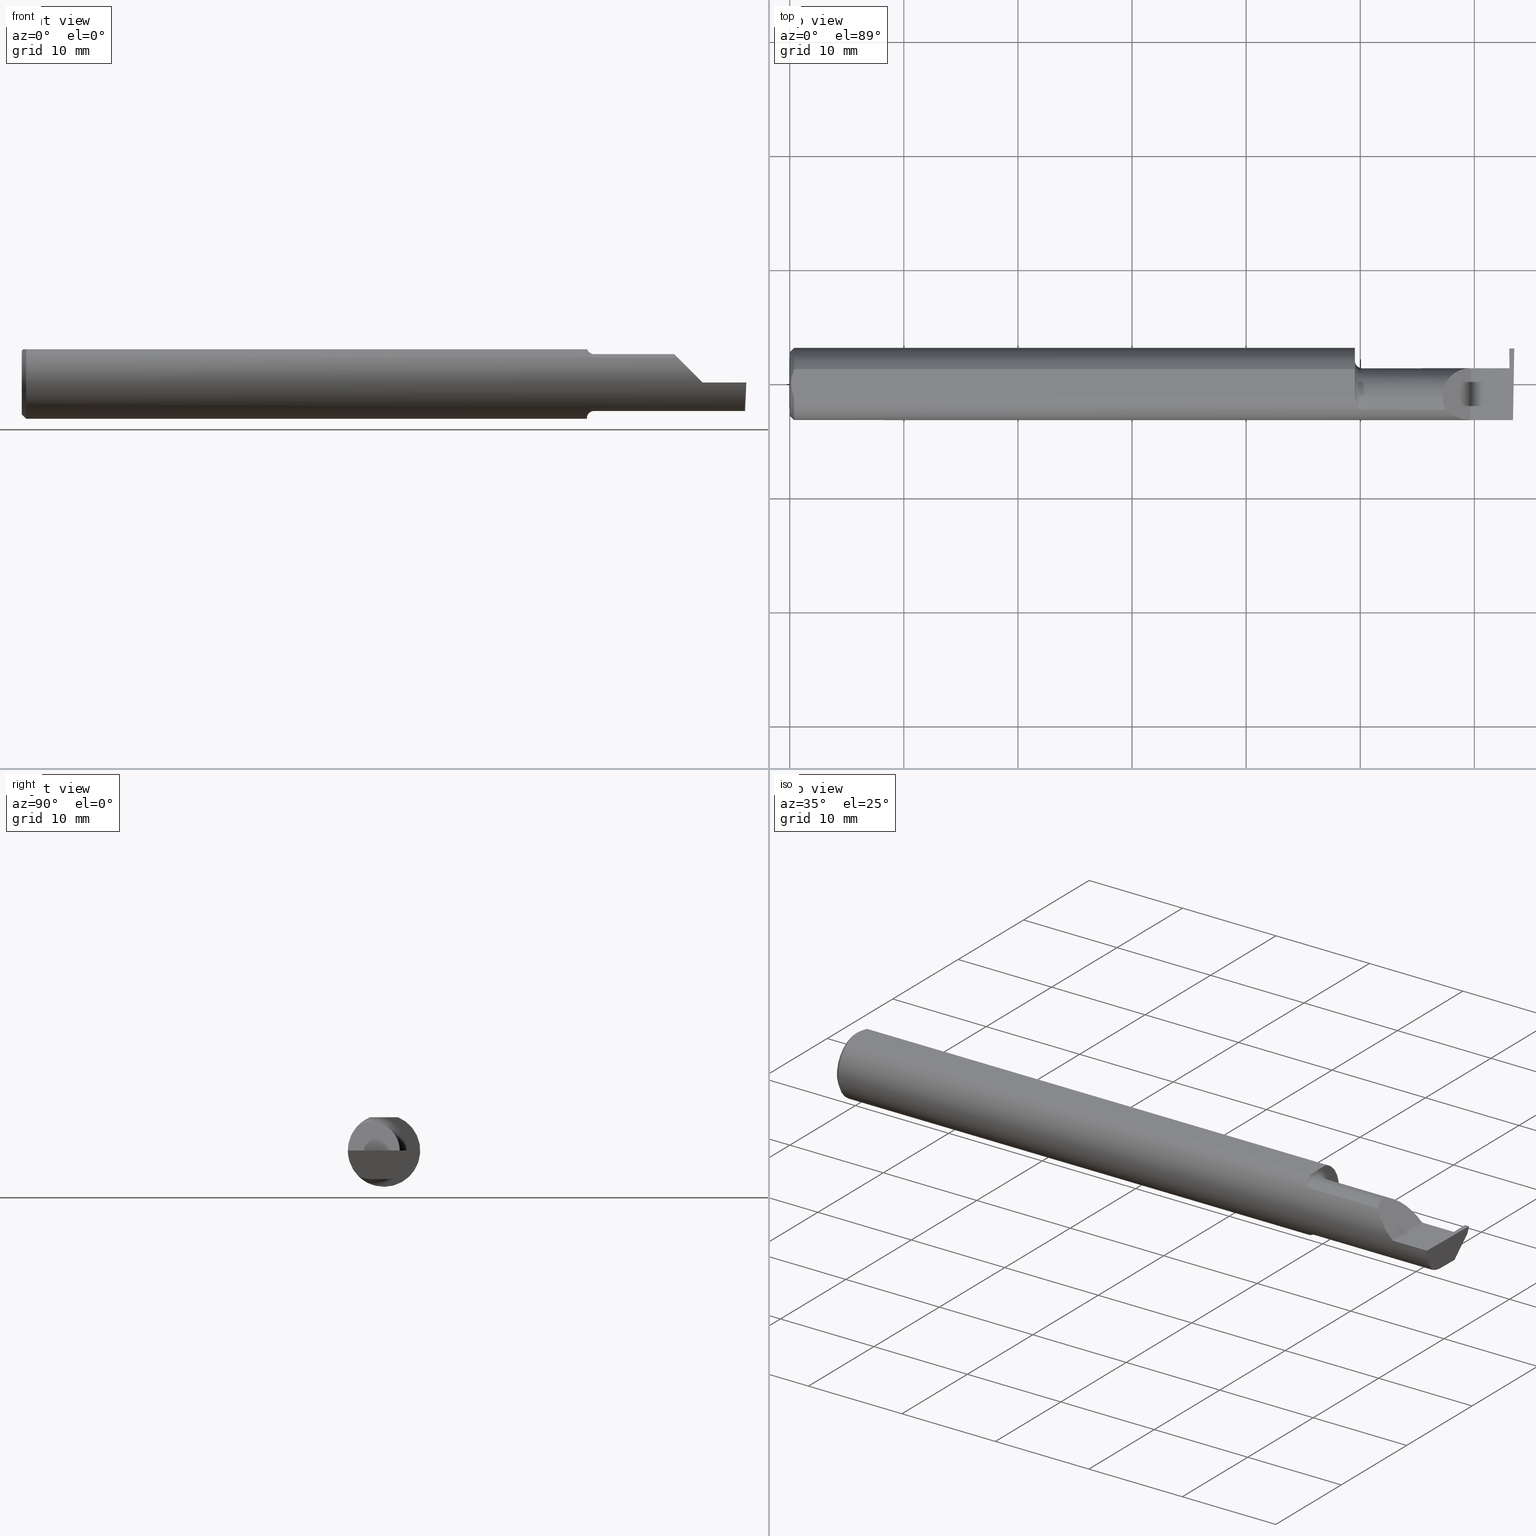
[diagram: canonical four-view strip — front | top / right | iso, engineering-drawing reading convention]
A machine part, canonical four-view strip (front | top / right | iso — engineering-drawing reading convention). The complete STEP part file that produces these views, byte-faithful:
ISO-10303-21;
HEADER;
FILE_DESCRIPTION (( 'STEP AP203' ),
    '1' );
FILE_NAME ('220794-GT017Q-8.STEP',
    '2024-07-08T18:41:53',
    ( '' ),
    ( '' ),
    'SwSTEP 2.0',
    'SolidWorks 2024',
    '' );
FILE_SCHEMA (( 'CONFIG_CONTROL_DESIGN' ));
ENDSEC;

DATA;
#1 = CARTESIAN_POINT ( 'NONE',  ( 1.951365755776839572, -0.04385000000000001397, 0.1148500000000000076 ) ) ;
#2 = ORIENTED_EDGE ( 'NONE', *, *, #129, .F. ) ;
#3 = CARTESIAN_POINT ( 'NONE',  ( 2.399999999999999911, 0.1138861372810479888, -0.02400000000000000050 ) ) ;
#4 = LINE ( 'NONE', #171, #613 ) ;
#5 = ORIENTED_EDGE ( 'NONE', *, *, #61, .T. ) ;
#6 = CARTESIAN_POINT ( 'NONE',  ( 1.950400391910593223, -0.01449986171080064855, 0.1148500000000000076 ) ) ;
#7 = EDGE_CURVE ( 'NONE', #627, #646, #183, .T. ) ;
#8 = APPLICATION_CONTEXT ( 'configuration controlled 3d designs of mechanical parts and assemblies' ) ;
#9 = DIRECTION ( 'NONE',  ( -1.000000000000000000, -0.000000000000000000, -0.000000000000000000 ) ) ;
#10 = EDGE_LOOP ( 'NONE', ( #750, #579, #18, #107, #685, #679 ) ) ;
#11 = DIRECTION ( 'NONE',  ( 0.000000000000000000, 0.000000000000000000, -1.000000000000000000 ) ) ;
#12 = CARTESIAN_POINT ( 'NONE',  ( 2.494536841675280225, -0.04385000000000003478, -0.09799999999999998990 ) ) ;
#13 = ORIENTED_EDGE ( 'NONE', *, *, #558, .F. ) ;
#14 = CARTESIAN_POINT ( 'NONE',  ( 2.317406910344188997, -0.1248500000000000165, 0.03259308965581150103 ) ) ;
#15 = VECTOR ( 'NONE', #325, 39.37007874015748143 ) ;
#16 = LOCAL_TIME ( 11, 41, 53.00000000000000000, #218 ) ;
#17 = CARTESIAN_POINT ( 'NONE',  ( 1.974999999999999867, -0.04385000000000001397, 0.000000000000000000 ) ) ;
#18 = ORIENTED_EDGE ( 'NONE', *, *, #421, .F. ) ;
#19 = FACE_OUTER_BOUND ( 'NONE', #243, .T. ) ;
#20 = DIRECTION ( 'NONE',  ( 1.000000000000000000, 0.000000000000000000, 0.000000000000000000 ) ) ;
#21 = VERTEX_POINT ( 'NONE', #766 ) ;
#22 = CARTESIAN_POINT ( 'NONE',  ( 2.487356049968028060, 0.03988613728104814515, -0.09799999999999985112 ) ) ;
#23 = EDGE_CURVE ( 'NONE', #602, #47, #153, .T. ) ;
#24 = ORIENTED_EDGE ( 'NONE', *, *, #238, .T. ) ;
#25 = EDGE_CURVE ( 'NONE', #722, #463, #98, .T. ) ;
#26 = CARTESIAN_POINT ( 'NONE',  ( 2.488918903665494398, 0.05424136207626864548, -0.1499086997478104033 ) ) ;
#27 = CONICAL_SURFACE ( 'NONE', #272, 0.1248500000000000026, 0.7853981633974480570 ) ;
#28 = CARTESIAN_POINT ( 'NONE',  ( 1.950756598855983848, -0.04385000000000000009, -0.1168961077196328385 ) ) ;
#29 = AXIS2_PLACEMENT_3D ( 'NONE', #775, #244, #11 ) ;
#30 = CARTESIAN_POINT ( 'NONE',  ( 0.005947935873631229539, 0.01679708999422689641, 0.1148500000000000076 ) ) ;
#31 = FACE_OUTER_BOUND ( 'NONE', #355, .T. ) ;
#32 = ORIENTED_EDGE ( 'NONE', *, *, #467, .T. ) ;
#33 = PERSON_AND_ORGANIZATION ( #138, #604 ) ;
#34 = DIRECTION ( 'NONE',  ( 0.000000000000000000, 0.000000000000000000, 1.000000000000000000 ) ) ;
#35 = CARTESIAN_POINT ( 'NONE',  ( 0.004999999999999990563, 1.454187663965904829E-17, 0.1148500000000000076 ) ) ;
#36 = ORIENTED_EDGE ( 'NONE', *, *, #263, .T. ) ;
#37 = DATE_AND_TIME ( #327, #591 ) ;
#38 = CARTESIAN_POINT ( 'NONE',  ( 1.950000000000000178, 0.000000000000000000, 0.000000000000000000 ) ) ;
#39 = CARTESIAN_POINT ( 'NONE',  ( 2.483482208140546099, 0.05115612325138108735, -0.02403823089877875352 ) ) ;
#40 = VECTOR ( 'NONE', #451, 39.37007874015748143 ) ;
#41 = AXIS2_PLACEMENT_3D ( 'NONE', #180, #347, #680 ) ;
#42 = ORIENTED_EDGE ( 'NONE', *, *, #174, .T. ) ;
#43 = CARTESIAN_POINT ( 'NONE',  ( 2.487353376795599758, -0.04385000000000004172, -0.09799999999999998990 ) ) ;
#44 = CARTESIAN_POINT ( 'NONE',  ( 2.483684773821554170, 0.05414999999999999675, 9.990194758399502864E-19 ) ) ;
#45 = CARTESIAN_POINT ( 'NONE',  ( 1.951365755776839572, -0.03650543323727819395, 0.1148500000000000215 ) ) ;
#46 = CARTESIAN_POINT ( 'NONE',  ( 1.951929090759343399, -0.05370719728932710907, -0.1128289886859672325 ) ) ;
#47 = VERTEX_POINT ( 'NONE', #593 ) ;
#48 = CARTESIAN_POINT ( 'NONE',  ( 2.494082244196983211, -0.07583965973232814628, -0.09404455760388207020 ) ) ;
#49 = EDGE_CURVE ( 'NONE', #47, #408, #294, .T. ) ;
#50 = CARTESIAN_POINT ( 'NONE',  ( 2.494256244271086054, -0.1126860773865890480, -0.06285177167860768466 ) ) ;
#51 = ORIENTED_EDGE ( 'NONE', *, *, #445, .T. ) ;
#52 = VECTOR ( 'NONE', #277, 39.37007874015748143 ) ;
#53 = AXIS2_PLACEMENT_3D ( 'NONE', #501, #437, #90 ) ;
#54 = CIRCLE ( 'NONE', #226, 0.1248500000000000026 ) ;
#55 = ORIENTED_EDGE ( 'NONE', *, *, #322, .F. ) ;
#56 = DIRECTION ( 'NONE',  ( -0.03866673033866090819, 0.3253246823342271776, 0.9448114812114909444 ) ) ;
#57 = ORIENTED_EDGE ( 'NONE', *, *, #25, .T. ) ;
#58 = EDGE_CURVE ( 'NONE', #237, #217, #454, .T. ) ;
#59 = CARTESIAN_POINT ( 'NONE',  ( 1.951365755776839794, -0.04470142088163548549, 0.1148500000000000076 ) ) ;
#60 = VERTEX_POINT ( 'NONE', #44 ) ;
#61 = EDGE_CURVE ( 'NONE', #781, #350, #465, .T. ) ;
#62 = DIRECTION ( 'NONE',  ( -1.000000000000000000, -0.000000000000000000, -0.000000000000000000 ) ) ;
#63 = AXIS2_PLACEMENT_3D ( 'NONE', #312, #118, #130 ) ;
#64 = CC_DESIGN_APPROVAL ( #126, ( #768 ) ) ;
#65 = LINE ( 'NONE', #425, #363 ) ;
#66 = ORIENTED_EDGE ( 'NONE', *, *, #49, .T. ) ;
#67 = CARTESIAN_POINT ( 'NONE',  ( 1.949999999999999956, -0.04385000000000001397, 0.09799999999999998990 ) ) ;
#68 = CARTESIAN_POINT ( 'NONE',  ( 1.974999999999999867, -0.04385000000000001397, 0.000000000000000000 ) ) ;
#69 = EDGE_LOOP ( 'NONE', ( #610, #615, #527, #24 ) ) ;
#70 = DIRECTION ( 'NONE',  ( 0.01744642479411244104, 0.9998477995484630343, -2.135106780035405654E-18 ) ) ;
#71 = PRODUCT_RELATED_PRODUCT_CATEGORY ( 'detail', '', ( #405 ) ) ;
#72 = CARTESIAN_POINT ( 'NONE',  ( 2.496652745773395576, 0.07741163850316090667, -0.09800000000000001765 ) ) ;
#73 = ORIENTED_EDGE ( 'NONE', *, *, #219, .T. ) ;
#74 =( NAMED_UNIT ( * ) PLANE_ANGLE_UNIT ( ) SI_UNIT ( $, .RADIAN. ) );
#75 = AXIS2_PLACEMENT_3D ( 'NONE', #536, #236, #476 ) ;
#76 = VECTOR ( 'NONE', #389, 39.37007874015748143 ) ;
#77 = DIRECTION ( 'NONE',  ( 0.000000000000000000, 0.000000000000000000, 1.000000000000000000 ) ) ;
#78 = ORIENTED_EDGE ( 'NONE', *, *, #104, .T. ) ;
#79 = DIRECTION ( 'NONE',  ( -1.000000000000000000, -0.000000000000000000, -0.000000000000000000 ) ) ;
#80 = DIRECTION ( 'NONE',  ( 0.000000000000000000, 0.000000000000000000, 1.000000000000000000 ) ) ;
#81 = VERTEX_POINT ( 'NONE', #39 ) ;
#82 = PLANE ( 'NONE',  #692 ) ;
#83 = CARTESIAN_POINT ( 'NONE',  ( 1.950000000000000178, 0.0001781444078671173391, 0.1148500000000000076 ) ) ;
#84 = CARTESIAN_POINT ( 'NONE',  ( 0.000000000000000000, 0.000000000000000000, 0.000000000000000000 ) ) ;
#85 = EDGE_CURVE ( 'NONE', #463, #408, #741, .T. ) ;
#86 = PLANE ( 'NONE',  #483 ) ;
#87 = AXIS2_PLACEMENT_3D ( 'NONE', #461, #337, #761 ) ;
#88 = CARTESIAN_POINT ( 'NONE',  ( 2.255955442396119004, -0.07583965973232800750, 0.09404455760388212571 ) ) ;
#89 = CIRCLE ( 'NONE', #388, 0.1098500000000000032 ) ;
#90 = DIRECTION ( 'NONE',  ( -0.7071067811865459074, 0.000000000000000000, 0.7071067811865492381 ) ) ;
#91 = DIRECTION ( 'NONE',  ( -1.000000000000000000, -0.000000000000000000, -0.000000000000000000 ) ) ;
#92 = PLANE ( 'NONE',  #160 ) ;
#93 = EDGE_LOOP ( 'NONE', ( #172, #190, #423, #78, #291 ) ) ;
#94 = CALENDAR_DATE ( 2024, 8, 7 ) ;
#95 = CARTESIAN_POINT ( 'NONE',  ( 0.01193974418109659125, 0.04115525648180412555, 0.1148500000000000215 ) ) ;
#96 = ORIENTED_EDGE ( 'NONE', *, *, #670, .T. ) ;
#97 = DIRECTION ( 'NONE',  ( 0.000000000000000000, -0.3255681544571576991, -0.9455185755993165131 ) ) ;
#98 = LINE ( 'NONE', #339, #639 ) ;
#99 = ORIENTED_EDGE ( 'NONE', *, *, #467, .F. ) ;
#100 = EDGE_CURVE ( 'NONE', #543, #753, #422, .T. ) ;
#101 = LINE ( 'NONE', #106, #562 ) ;
#102 = ORIENTED_EDGE ( 'NONE', *, *, #380, .F. ) ;
#103 = DATE_AND_TIME ( #266, #16 ) ;
#104 = EDGE_CURVE ( 'NONE', #326, #418, #211, .T. ) ;
#105 = LINE ( 'NONE', #67, #642 ) ;
#106 = CARTESIAN_POINT ( 'NONE',  ( 2.500000000000000000, -0.04385000000000002091, -0.09799999999999998990 ) ) ;
#107 = ORIENTED_EDGE ( 'NONE', *, *, #670, .F. ) ;
#108 = CYLINDRICAL_SURFACE ( 'NONE', #549, 0.09799999999999998990 ) ;
#109 = ORIENTED_EDGE ( 'NONE', *, *, #755, .T. ) ;
#110 = VECTOR ( 'NONE', #278, 39.37007874015748143 ) ;
#111 = VECTOR ( 'NONE', #444, 39.37007874015748143 ) ;
#112 = CARTESIAN_POINT ( 'NONE',  ( 1.951339737573316135, -0.04810771292170309965, 0.1148500000000000215 ) ) ;
#113 = ORIENTED_EDGE ( 'NONE', *, *, #23, .T. ) ;
#114 = EDGE_CURVE ( 'NONE', #217, #418, #258, .T. ) ;
#115 = CARTESIAN_POINT ( 'NONE',  ( 1.953850144156349167, -0.06295012366509131208, -0.1079450122012245994 ) ) ;
#116 = EDGE_LOOP ( 'NONE', ( #256, #744, #55, #36, #479, #532, #634 ) ) ;
#117 = DIRECTION ( 'NONE',  ( -1.000000000000000000, -0.000000000000000000, -0.000000000000000000 ) ) ;
#118 = DIRECTION ( 'NONE',  ( -1.000000000000000000, -0.000000000000000000, -0.000000000000000000 ) ) ;
#119 = ORIENTED_EDGE ( 'NONE', *, *, #181, .T. ) ;
#120 = PLANE ( 'NONE',  #664 ) ;
#121 = VECTOR ( 'NONE', #20, 39.37007874015748143 ) ;
#122 = VECTOR ( 'NONE', #658, 39.37007874015748854 ) ;
#123 = ADVANCED_FACE ( 'NONE', ( #31 ), #159, .F. ) ;
#124 = CARTESIAN_POINT ( 'NONE',  ( 2.483482208140547431, -2.430858181986516264, -0.02555089814648706797 ) ) ;
#125 = VERTEX_POINT ( 'NONE', #264 ) ;
#126 = APPROVAL ( #585, 'UNSPECIFIED' ) ;
#127 = LINE ( 'NONE', #464, #274 ) ;
#128 = B_SPLINE_CURVE_WITH_KNOTS ( 'NONE', 3,
 ( #654, #45, #492, #6, #302, #533 ),
 .UNSPECIFIED., .F., .F.,
 ( 4, 2, 4 ),
 ( 0.009485158816280052710, 0.01004274199597727374, 0.01060032517567449477 ),
 .UNSPECIFIED. ) ;
#129 = EDGE_CURVE ( 'NONE', #385, #318, #776, .T. ) ;
#130 = DIRECTION ( 'NONE',  ( 0.000000000000000000, 0.000000000000000000, 1.000000000000000000 ) ) ;
#131 = ORIENTED_EDGE ( 'NONE', *, *, #696, .F. ) ;
#132 = FACE_OUTER_BOUND ( 'NONE', #368, .T. ) ;
#133 = ORIENTED_EDGE ( 'NONE', *, *, #349, .F. ) ;
#134 = CARTESIAN_POINT ( 'NONE',  ( 2.287163018370355072, -0.1127002472623170326, 0.06283698162964523881 ) ) ;
#135 = AXIS2_PLACEMENT_3D ( 'NONE', #124, #736, #373 ) ;
#136 = VECTOR ( 'NONE', #779, 39.37007874015748854 ) ;
#137 = LINE ( 'NONE', #742, #575 ) ;
#138 = PERSON ( 'UNSPECIFIED', 'UNSPECIFIED', 'UNSPECIFIED', ('UNSPECIFIED'), ('UNSPECIFIED'), ('UNSPECIFIED') ) ;
#139 = ORIENTED_EDGE ( 'NONE', *, *, #349, .T. ) ;
#140 = CARTESIAN_POINT ( 'NONE',  ( 1.952489051389808994, -0.05793447593675042639, 0.1110239341513664241 ) ) ;
#141 = PLANE ( 'NONE',  #87 ) ;
#142 = ADVANCED_FACE ( 'NONE', ( #515 ), #92, .F. ) ;
#143 = ORIENTED_EDGE ( 'NONE', *, *, #511, .F. ) ;
#144 = DIRECTION ( 'NONE',  ( -1.000000000000000000, -0.000000000000000000, -0.000000000000000000 ) ) ;
#145 = CARTESIAN_POINT ( 'NONE',  ( 0.01195732443765547617, -0.04120008761723503027, 0.1148500000000000076 ) ) ;
#146 = ORIENTED_EDGE ( 'NONE', *, *, #504, .T. ) ;
#147 = VECTOR ( 'NONE', #499, 39.37007874015747433 ) ;
#148 = CARTESIAN_POINT ( 'NONE',  ( 1.949999999999999956, -0.04385000000000000703, -0.09799999999999998990 ) ) ;
#149 = DIRECTION ( 'NONE',  ( 0.7071067811865476838, 0.000000000000000000, -0.7071067811865473507 ) ) ;
#150 = ORIENTED_EDGE ( 'NONE', *, *, #486, .F. ) ;
#151 = EDGE_CURVE ( 'NONE', #588, #353, #304, .T. ) ;
#152 = CARTESIAN_POINT ( 'NONE',  ( 2.488918903665494398, 0.05424136207626864548, -0.1499086997478104033 ) ) ;
#153 = LINE ( 'NONE', #762, #185 ) ;
#154 = CALENDAR_DATE ( 2024, 8, 7 ) ;
#155 = DIRECTION ( 'NONE',  ( 1.000000000000000000, 0.000000000000000000, 0.000000000000000000 ) ) ;
#156 = LINE ( 'NONE', #698, #523 ) ;
#157 = EDGE_CURVE ( 'NONE', #318, #627, #156, .T. ) ;
#158 = CARTESIAN_POINT ( 'NONE',  ( 2.350000000000000089, -0.1248500000000000026, 1.836970198721028825E-17 ) ) ;
#159 = PLANE ( 'NONE',  #590 ) ;
#160 = AXIS2_PLACEMENT_3D ( 'NONE', #329, #201, #446 ) ;
#161 = EDGE_CURVE ( 'NONE', #452, #350, #398, .T. ) ;
#162 = EDGE_LOOP ( 'NONE', ( #188, #133, #657, #198, #362, #2, #229 ) ) ;
#163 = PERSON_AND_ORGANIZATION ( #138, #604 ) ;
#164 = DIRECTION ( 'NONE',  ( 0.000000000000000000, 0.000000000000000000, 1.000000000000000000 ) ) ;
#165 = CARTESIAN_POINT ( 'NONE',  ( 2.494835769263151537, -0.1248351010429638169, -0.03262966116142150541 ) ) ;
#166 = ADVANCED_BREP_SHAPE_REPRESENTATION ( '220794-GT017Q-8', ( #732, #743 ), #415 ) ;
#167 = ORIENTED_EDGE ( 'NONE', *, *, #617, .T. ) ;
#168 = PERSON_AND_ORGANIZATION ( #138, #604 ) ;
#169 = CARTESIAN_POINT ( 'NONE',  ( 2.487356049968029836, -2.430813110080949357, -0.09950577126914013359 ) ) ;
#170 = ORIENTED_EDGE ( 'NONE', *, *, #356, .F. ) ;
#171 = CARTESIAN_POINT ( 'NONE',  ( 2.488116473413796825, -0.2002070484001042538, 1.455312279637640045E-18 ) ) ;
#172 = ORIENTED_EDGE ( 'NONE', *, *, #520, .F. ) ;
#173 = CLOSED_SHELL ( 'NONE', ( #656, #687, #439, #393, #196, #535, #289, #340, #731, #643, #123, #737, #473, #204, #142, #599, #546, #572, #782, #261, #315, #786 ) ) ;
#174 = EDGE_CURVE ( 'NONE', #503, #81, #674, .T. ) ;
#175 = CARTESIAN_POINT ( 'NONE',  ( 1.972259638933031578, -0.09015216647662446792, -0.08637192471845803188 ) ) ;
#176 = ORIENTED_EDGE ( 'NONE', *, *, #496, .T. ) ;
#177 = CYLINDRICAL_SURFACE ( 'NONE', #471, 0.09799999999999998990 ) ;
#178 = DIRECTION ( 'NONE',  ( 0.05230942393459277195, 0.000000000000000000, -0.9986309249005015376 ) ) ;
#179 = ORIENTED_EDGE ( 'NONE', *, *, #356, .T. ) ;
#180 = CARTESIAN_POINT ( 'NONE',  ( 1.974999999999999867, -0.04385000000000001397, 0.1230000000000000121 ) ) ;
#181 = EDGE_CURVE ( 'NONE', #21, #584, #267, .T. ) ;
#182 = CARTESIAN_POINT ( 'NONE',  ( 2.483367975664828364, 0.1160682612756625820, -0.02181787600538541080 ) ) ;
#183 = LINE ( 'NONE', #426, #15 ) ;
#184 = CARTESIAN_POINT ( 'NONE',  ( 0.01499999999999999944, 0.000000000000000000, 0.000000000000000000 ) ) ;
#185 = VECTOR ( 'NONE', #645, 39.37007874015748143 ) ;
#186 = AXIS2_PLACEMENT_3D ( 'NONE', #310, #79, #316 ) ;
#187 = CARTESIAN_POINT ( 'NONE',  ( 2.399999999999999911, 0.1138861372810479888, -0.02400000000000000050 ) ) ;
#188 = ORIENTED_EDGE ( 'NONE', *, *, #700, .T. ) ;
#189 = LINE ( 'NONE', #182, #740 ) ;
#190 = ORIENTED_EDGE ( 'NONE', *, *, #223, .F. ) ;
#191 = DIRECTION ( 'NONE',  ( 0.03490478697967554222, 0.000000000000000000, -0.9993906422645267851 ) ) ;
#192 = CC_DESIGN_PERSON_AND_ORGANIZATION_ASSIGNMENT ( #163, #538, ( #480 ) ) ;
#193 = FACE_OUTER_BOUND ( 'NONE', #447, .T. ) ;
#194 = VERTEX_POINT ( 'NONE', #411 ) ;
#195 = AXIS2_PLACEMENT_3D ( 'NONE', #377, #630, #435 ) ;
#196 = ADVANCED_FACE ( 'NONE', ( #665 ), #27, .T. ) ;
#197 = FACE_OUTER_BOUND ( 'NONE', #391, .T. ) ;
#198 = ORIENTED_EDGE ( 'NONE', *, *, #460, .F. ) ;
#199 = CARTESIAN_POINT ( 'NONE',  ( 1.974999999999999867, -0.09015216647662489813, 0.08637192471845762942 ) ) ;
#200 = DIRECTION ( 'NONE',  ( 0.04089968566326915300, 0.0006089413954177156025, -0.9991630722274631449 ) ) ;
#201 = DIRECTION ( 'NONE',  ( -0.000000000000000000, 2.817424862263051475E-16, 1.000000000000000000 ) ) ;
#202 = ORIENTED_EDGE ( 'NONE', *, *, #61, .F. ) ;
#203 = DIRECTION ( 'NONE',  ( 0.000000000000000000, 0.000000000000000000, 1.000000000000000000 ) ) ;
#204 = ADVANCED_FACE ( 'NONE', ( #662 ), #108, .T. ) ;
#205 = DIRECTION ( 'NONE',  ( -0.03042981077198511977, -0.3254173858243485373, -0.9450807116958996890 ) ) ;
#206 = APPROVAL ( #213, 'UNSPECIFIED' ) ;
#207 = CARTESIAN_POINT ( 'NONE',  ( 0.01499999999999999944, -0.04895916665957456698, 0.1148500000000000076 ) ) ;
#208 = APPLICATION_PROTOCOL_DEFINITION ( 'international standard', 'config_control_design', 1994, #431 ) ;
#209 = FACE_OUTER_BOUND ( 'NONE', #69, .T. ) ;
#210 = LOCAL_TIME ( 11, 41, 53.00000000000000000, #522 ) ;
#211 = LINE ( 'NONE', #216, #40 ) ;
#212 = ORIENTED_EDGE ( 'NONE', *, *, #520, .T. ) ;
#213 = APPROVAL_STATUS ( 'not_yet_approved' ) ;
#214 = PRODUCT_DEFINITION_SHAPE ( 'NONE', 'NONE',  #480 ) ;
#215 = CARTESIAN_POINT ( 'NONE',  ( 1.950000000000000178, -0.1248500000000000165, 0.1148500000000000076 ) ) ;
#216 = CARTESIAN_POINT ( 'NONE',  ( 2.228750000000000231, -0.09015216647662485649, -0.08637192471845764330 ) ) ;
#217 = VERTEX_POINT ( 'NONE', #721 ) ;
#218 = COORDINATED_UNIVERSAL_TIME_OFFSET ( 8, 0, .BEHIND. ) ;
#219 = EDGE_CURVE ( 'NONE', #326, #385, #360, .T. ) ;
#220 = CARTESIAN_POINT ( 'NONE',  ( 1.950756598855983848, -0.04385000000000000009, -0.1168961077196328385 ) ) ;
#221 = CARTESIAN_POINT ( 'NONE',  ( 2.493072779947982820, -0.1248043149033065263, -0.09996577117162364079 ) ) ;
#222 = LINE ( 'NONE', #235, #323 ) ;
#223 = EDGE_CURVE ( 'NONE', #430, #503, #101, .T. ) ;
#224 = CARTESIAN_POINT ( 'NONE',  ( 2.483482208140546099, 0.05115612325138108735, -0.02403823089877875352 ) ) ;
#225 = AXIS2_PLACEMENT_3D ( 'NONE', #688, #569, #429 ) ;
#226 = AXIS2_PLACEMENT_3D ( 'NONE', #184, #616, #611 ) ;
#227 = VERTEX_POINT ( 'NONE', #290 ) ;
#228 = PLANE ( 'NONE',  #75 ) ;
#229 = ORIENTED_EDGE ( 'NONE', *, *, #219, .F. ) ;
#230 = LINE ( 'NONE', #550, #413 ) ;
#231 = ORIENTED_EDGE ( 'NONE', *, *, #758, .F. ) ;
#232 = DIRECTION ( 'NONE',  ( 0.000000000000000000, 0.000000000000000000, 1.000000000000000000 ) ) ;
#233 = ORIENTED_EDGE ( 'NONE', *, *, #364, .T. ) ;
#234 = AXIS2_PLACEMENT_3D ( 'NONE', #260, #513, #638 ) ;
#235 = CARTESIAN_POINT ( 'NONE',  ( 2.483482208140547431, -2.430858181986516264, -0.02555089814648706797 ) ) ;
#236 = DIRECTION ( 'NONE',  ( 0.000000000000000000, -0.000000000000000000, 1.000000000000000000 ) ) ;
#237 = VERTEX_POINT ( 'NONE', #788 ) ;
#238 = EDGE_CURVE ( 'NONE', #194, #125, #230, .T. ) ;
#239 = LINE ( 'NONE', #489, #136 ) ;
#240 = CC_DESIGN_DATE_AND_TIME_ASSIGNMENT ( #37, #580, ( #480 ) ) ;
#241 = CARTESIAN_POINT ( 'NONE',  ( 1.950000000000000178, -0.02715330672748003313, -0.1218614805168695830 ) ) ;
#242 = EDGE_CURVE ( 'NONE', #314, #237, #469, .T. ) ;
#243 = EDGE_LOOP ( 'NONE', ( #548, #412, #109, #308 ) ) ;
#244 = DIRECTION ( 'NONE',  ( 1.000000000000000000, 0.000000000000000000, 0.000000000000000000 ) ) ;
#245 = DIRECTION ( 'NONE',  ( -1.000000000000000000, -0.000000000000000000, -0.000000000000000000 ) ) ;
#246 = ORIENTED_EDGE ( 'NONE', *, *, #493, .F. ) ;
#247 = VECTOR ( 'NONE', #557, 39.37007874015748143 ) ;
#248 = APPROVAL_PERSON_ORGANIZATION ( #168, #334, #409 ) ;
#249 = CARTESIAN_POINT ( 'NONE',  ( 0.01499999999999999944, -0.04895916665957456698, 0.1148500000000000076 ) ) ;
#250 = ORIENTED_EDGE ( 'NONE', *, *, #298, .T. ) ;
#251 = CARTESIAN_POINT ( 'NONE',  ( 1.961053217927679615, -0.08094812012685127789, 0.09514231764822689286 ) ) ;
#252 = LINE ( 'NONE', #72, #147 ) ;
#253 = ORIENTED_EDGE ( 'NONE', *, *, #673, .T. ) ;
#254 =( CONVERSION_BASED_UNIT ( 'INCH', #623 ) LENGTH_UNIT ( ) NAMED_UNIT ( #565 ) );
#255 = LINE ( 'NONE', #681, #387 ) ;
#256 = ORIENTED_EDGE ( 'NONE', *, *, #157, .F. ) ;
#257 = APPLICATION_PROTOCOL_DEFINITION ( 'international standard', 'config_control_design', 1994, #8 ) ;
#258 = CIRCLE ( 'NONE', #508, 0.09799999999999998990 ) ;
#259 = DIRECTION ( 'NONE',  ( 0.000000000000000000, 0.000000000000000000, 1.000000000000000000 ) ) ;
#260 = CARTESIAN_POINT ( 'NONE',  ( 1.974999999999999867, -0.04385000000000001397, 0.000000000000000000 ) ) ;
#261 = ADVANCED_FACE ( 'NONE', ( #728 ), #601, .F. ) ;
#262 = CYLINDRICAL_SURFACE ( 'NONE', #720, 0.1248500000000000026 ) ;
#263 = EDGE_CURVE ( 'NONE', #125, #60, #4, .T. ) ;
#264 = CARTESIAN_POINT ( 'NONE',  ( 2.482499999999999929, 0.1221499999999999808, -3.306546357697866753E-19 ) ) ;
#265 = ORIENTED_EDGE ( 'NONE', *, *, #689, .T. ) ;
#266 = CALENDAR_DATE ( 2024, 8, 7 ) ;
#267 = B_SPLINE_CURVE_WITH_KNOTS ( 'NONE', 3,
 ( #333, #112, #351, #733, #59, #1 ),
 .UNSPECIFIED., .F., .F.,
 ( 4, 2, 4 ),
 ( 0.009355882855483428281, 0.009420520835881740496, 0.009485158816280052710 ),
 .UNSPECIFIED. ) ;
#268 = DIRECTION ( 'NONE',  ( -1.000000000000000000, -0.000000000000000000, -0.000000000000000000 ) ) ;
#269 = CARTESIAN_POINT ( 'NONE',  ( 0.005932194444709715242, -0.01671525318617308672, 0.1148499999999999938 ) ) ;
#270 = ORIENTED_EDGE ( 'NONE', *, *, #161, .T. ) ;
#271 = APPROVAL_ROLE ( '' ) ;
#272 = AXIS2_PLACEMENT_3D ( 'NONE', #348, #354, #544 ) ;
#273 = CARTESIAN_POINT ( 'NONE',  ( 0.000000000000000000, -0.04895916665957456698, 0.1148500000000000076 ) ) ;
#274 = VECTOR ( 'NONE', #70, 39.37007874015747433 ) ;
#275 = CARTESIAN_POINT ( 'NONE',  ( 0.009415874254822407391, -0.03313958207962815206, 0.1148500000000000076 ) ) ;
#276 = ORIENTED_EDGE ( 'NONE', *, *, #755, .F. ) ;
#277 = DIRECTION ( 'NONE',  ( -0.03489418134011375294, -0.0006090802009084599154, 0.9993908270190957621 ) ) ;
#278 = DIRECTION ( 'NONE',  ( 0.05230943362268286601, 0.0006086169641122236244, -0.9986307389317961025 ) ) ;
#279 =( BOUNDED_CURVE ( )  B_SPLINE_CURVE ( 3, ( #284, #730, #306, #556 ),
 .UNSPECIFIED., .F., .T. ) 
 B_SPLINE_CURVE_WITH_KNOTS ( ( 4, 4 ),
 ( 0.000000000000000000, 1.570796326794896558 ),
 .UNSPECIFIED. ) 
 CURVE ( )  GEOMETRIC_REPRESENTATION_ITEM ( )  RATIONAL_B_SPLINE_CURVE ( ( 1.000000000000000000, 0.8047378541243649375, 0.8047378541243649375, 1.000000000000000000 ) ) 
 REPRESENTATION_ITEM ( '' )  );
#280 = EDGE_CURVE ( 'NONE', #418, #588, #746, .T. ) ;
#281 = LINE ( 'NONE', #424, #122 ) ;
#282 = ORIENTED_EDGE ( 'NONE', *, *, #612, .F. ) ;
#283 = SHAPE_DEFINITION_REPRESENTATION ( #214, #166 ) ;
#284 = CARTESIAN_POINT ( 'NONE',  ( 2.252000000000000668, -0.04385000000000001397, 0.09799999999999998990 ) ) ;
#285 = CARTESIAN_POINT ( 'NONE',  ( 1.960226514481664850, -0.07966992494485836129, -0.09623747760188229583 ) ) ;
#286 = TOROIDAL_SURFACE ( 'NONE', #719, 0.1230000000000000121, 0.02499999999999980710 ) ;
#287 = AXIS2_PLACEMENT_3D ( 'NONE', #359, #406, #739 ) ;
#288 = ORIENTED_EDGE ( 'NONE', *, *, #85, .F. ) ;
#289 = ADVANCED_FACE ( 'NONE', ( #609 ), #228, .T. ) ;
#290 = CARTESIAN_POINT ( 'NONE',  ( 2.499227245409318066, 0.1138861372810480027, -0.02399999999999999356 ) ) ;
#291 = ORIENTED_EDGE ( 'NONE', *, *, #114, .F. ) ;
#292 = CARTESIAN_POINT ( 'NONE',  ( 2.485853341463134747, 0.03970102213383013001, -0.06931214282740411070 ) ) ;
#293 = ORIENTED_EDGE ( 'NONE', *, *, #696, .T. ) ;
#294 = B_SPLINE_CURVE_WITH_KNOTS ( 'NONE', 3,
 ( #35, #759, #269, #275, #145, #207 ),
 .UNSPECIFIED., .F., .F.,
 ( 4, 2, 4 ),
 ( 0.003658435455108827606, 0.004289327297787134258, 0.004920219140465441343 ),
 .UNSPECIFIED. ) ;
#295 = CARTESIAN_POINT ( 'NONE',  ( 1.949999999999999956, -0.04385000000000001397, 0.000000000000000000 ) ) ;
#296 = ORIENTED_EDGE ( 'NONE', *, *, #223, .T. ) ;
#297 = VECTOR ( 'NONE', #502, 39.37007874015748143 ) ;
#298 = EDGE_CURVE ( 'NONE', #81, #484, #510, .T. ) ;
#299 = DIRECTION ( 'NONE',  ( 0.000000000000000000, -0.7071067811865462405, 0.7071067811865487940 ) ) ;
#300 = LINE ( 'NONE', #620, #247 ) ;
#301 = VERTEX_POINT ( 'NONE', #780 ) ;
#302 = CARTESIAN_POINT ( 'NONE',  ( 1.949999999999999956, -0.007185469346089995955, 0.1148500000000000076 ) ) ;
#303 = FACE_OUTER_BOUND ( 'NONE', #10, .T. ) ;
#304 = B_SPLINE_CURVE_WITH_KNOTS ( 'NONE', 3,
 ( #28, #402, #708, #702 ),
 .UNSPECIFIED., .F., .F.,
 ( 4, 4 ),
 ( 0.001640801893433568772, 0.002088276671954482962 ),
 .UNSPECIFIED. ) ;
#305 = ORIENTED_EDGE ( 'NONE', *, *, #581, .F. ) ;
#306 = CARTESIAN_POINT ( 'NONE',  ( 2.292592929112563738, 0.05415000000000001062, 0.05740707088743667724 ) ) ;
#307 = DIRECTION ( 'NONE',  ( -1.000000000000000000, -0.000000000000000000, -0.000000000000000000 ) ) ;
#308 = ORIENTED_EDGE ( 'NONE', *, *, #242, .T. ) ;
#309 = UNCERTAINTY_MEASURE_WITH_UNIT (LENGTH_MEASURE( 1.000000000000000082E-05 ), #254, 'distance_accuracy_value', 'NONE');
#310 = CARTESIAN_POINT ( 'NONE',  ( 1.974999999999999867, -0.04385000000000001397, 0.000000000000000000 ) ) ;
#311 = CONICAL_SURFACE ( 'NONE', #29, 0.1248500000000000026, 0.7853981633974480570 ) ;
#312 = CARTESIAN_POINT ( 'NONE',  ( 1.950000000000000178, -0.04385000000000001397, 0.000000000000000000 ) ) ;
#313 = EDGE_CURVE ( 'NONE', #646, #545, #747, .T. ) ;
#314 = VERTEX_POINT ( 'NONE', #370 ) ;
#315 = ADVANCED_FACE ( 'NONE', ( #506 ), #566, .F. ) ;
#316 = DIRECTION ( 'NONE',  ( 0.000000000000000000, 0.000000000000000000, 1.000000000000000000 ) ) ;
#317 = PLANE ( 'NONE',  #195 ) ;
#318 = VERTEX_POINT ( 'NONE', #495 ) ;
#319 = CARTESIAN_POINT ( 'NONE',  ( 0.000000000000000000, 0.000000000000000000, 0.000000000000000000 ) ) ;
#320 = CC_DESIGN_PERSON_AND_ORGANIZATION_ASSIGNMENT ( #598, #475, ( #768 ) ) ;
#321 = CARTESIAN_POINT ( 'NONE',  ( 2.252000000000000668, -0.04385000000000001397, 0.09799999999999998990 ) ) ;
#322 = EDGE_CURVE ( 'NONE', #125, #691, #300, .T. ) ;
#323 = VECTOR ( 'NONE', #485, 39.37007874015748854 ) ;
#324 = DIRECTION ( 'NONE',  ( 0.000000000000000000, 0.0006094513490876972287, -0.9999998142845092364 ) ) ;
#325 = DIRECTION ( 'NONE',  ( -0.000000000000000000, 1.000000000000000000, -0.000000000000000000 ) ) ;
#326 = VERTEX_POINT ( 'NONE', #677 ) ;
#327 = CALENDAR_DATE ( 2024, 8, 7 ) ;
#328 = CARTESIAN_POINT ( 'NONE',  ( 2.500000000000000000, 0.03988613728104772188, -0.09800000000000000377 ) ) ;
#329 = CARTESIAN_POINT ( 'NONE',  ( 2.500000000000000000, 0.07735323199453268683, -0.09800000000000001765 ) ) ;
#330 = ORIENTED_EDGE ( 'NONE', *, *, #242, .F. ) ;
#331 = APPROVAL_ROLE ( '' ) ;
#332 = CARTESIAN_POINT ( 'NONE',  ( 0.009410502401328750890, 0.03310661131402438395, 0.1148499999999999938 ) ) ;
#333 = CARTESIAN_POINT ( 'NONE',  ( 1.951326891871145719, -0.04895916665873453755, 0.1148500000000000076 ) ) ;
#334 = APPROVAL ( #459, 'UNSPECIFIED' ) ;
#335 = EDGE_LOOP ( 'NONE', ( #640, #231, #777, #769 ) ) ;
#336 = TOROIDAL_SURFACE ( 'NONE', #703, 0.1230000000000000121, 0.02499999999999980710 ) ;
#337 = DIRECTION ( 'NONE',  ( 1.000000000000000000, 0.000000000000000000, 0.000000000000000000 ) ) ;
#338 = LOCAL_TIME ( 11, 41, 53.00000000000000000, #453 ) ;
#339 = CARTESIAN_POINT ( 'NONE',  ( 0.01499999999999999944, 0.000000000000000000, -0.1248500000000000026 ) ) ;
#340 = ADVANCED_FACE ( 'NONE', ( #752 ), #317, .F. ) ;
#341 = ORIENTED_EDGE ( 'NONE', *, *, #511, .T. ) ;
#342 = COORDINATED_UNIVERSAL_TIME_OFFSET ( 8, 0, .BEHIND. ) ;
#343 = CARTESIAN_POINT ( 'NONE',  ( 1.949999999999999956, -0.04385000000000001397, 0.000000000000000000 ) ) ;
#344 = DIRECTION ( 'NONE',  ( 0.01742050049977531337, -0.9998482515673753346, -2.130797594924656863E-18 ) ) ;
#345 = ORIENTED_EDGE ( 'NONE', *, *, #531, .T. ) ;
#346 = SECURITY_CLASSIFICATION_LEVEL ( 'unclassified' ) ;
#347 = DIRECTION ( 'NONE',  ( 0.000000000000000000, -1.000000000000000000, 0.000000000000000000 ) ) ;
#348 = CARTESIAN_POINT ( 'NONE',  ( 0.01499999999999999944, 0.000000000000000000, 0.000000000000000000 ) ) ;
#349 = EDGE_CURVE ( 'NONE', #726, #430, #252, .T. ) ;
#350 = VERTEX_POINT ( 'NONE', #420 ) ;
#351 = CARTESIAN_POINT ( 'NONE',  ( 1.951349474474288082, -0.04725615793095604145, 0.1148499999999999938 ) ) ;
#352 = PRODUCT_DEFINITION_FORMATION_WITH_SPECIFIED_SOURCE ( 'ANY', '', #405, .NOT_KNOWN. ) ;
#353 = VERTEX_POINT ( 'NONE', #241 ) ;
#354 = DIRECTION ( 'NONE',  ( 1.000000000000000000, 0.000000000000000000, 0.000000000000000000 ) ) ;
#355 = EDGE_LOOP ( 'NONE', ( #341, #233 ) ) ;
#356 = EDGE_CURVE ( 'NONE', #350, #194, #189, .T. ) ;
#357 = CARTESIAN_POINT ( 'NONE',  ( 1.950756598855983848, -0.04385000000000000009, -0.1168961077196328385 ) ) ;
#358 = ORIENTED_EDGE ( 'NONE', *, *, #114, .T. ) ;
#359 = CARTESIAN_POINT ( 'NONE',  ( 1.949999999999999956, -0.04385000000000001397, 0.000000000000000000 ) ) ;
#360 =( BOUNDED_CURVE ( )  B_SPLINE_CURVE ( 3, ( #487, #50, #165, #607 ),
 .UNSPECIFIED., .F., .F. ) 
 B_SPLINE_CURVE_WITH_KNOTS ( ( 4, 4 ),
 ( 0.2190942387645745393, 0.9826237902197102470 ),
 .UNSPECIFIED. ) 
 CURVE ( )  GEOMETRIC_REPRESENTATION_ITEM ( )  RATIONAL_B_SPLINE_CURVE ( ( 1.000000000000000000, 0.9520057322288819623, 0.9520057322288819623, 1.000000000000000000 ) ) 
 REPRESENTATION_ITEM ( '' )  );
#361 = DIRECTION ( 'NONE',  ( 1.000000000000000000, 0.000000000000000000, 0.000000000000000000 ) ) ;
#362 = ORIENTED_EDGE ( 'NONE', *, *, #716, .F. ) ;
#363 = VECTOR ( 'NONE', #561, 39.37007874015748143 ) ;
#364 = EDGE_CURVE ( 'NONE', #602, #722, #690, .T. ) ;
#365 = AXIS2_PLACEMENT_3D ( 'NONE', #633, #91, #259 ) ;
#366 = FACE_OUTER_BOUND ( 'NONE', #507, .T. ) ;
#367 = LINE ( 'NONE', #187, #297 ) ;
#368 = EDGE_LOOP ( 'NONE', ( #474, #170, #668, #734 ) ) ;
#369 = CARTESIAN_POINT ( 'NONE',  ( 2.350000000000000089, 0.05414999999999985103, 1.836970198721028825E-17 ) ) ;
#370 = CARTESIAN_POINT ( 'NONE',  ( 1.974999999999999867, -0.09015216647662489813, 0.08637192471845762942 ) ) ;
#371 = ORIENTED_EDGE ( 'NONE', *, *, #637, .T. ) ;
#372 = CARTESIAN_POINT ( 'NONE',  ( 2.497382703856815933, 0.1221956850741156148, -0.09996573249755576207 ) ) ;
#373 = DIRECTION ( 'NONE',  ( 0.04089967808026993140, 0.000000000000000000, -0.9991632580979598055 ) ) ;
#374 = ORIENTED_EDGE ( 'NONE', *, *, #581, .T. ) ;
#375 = DIRECTION ( 'NONE',  ( 0.02618093032612054880, 0.000000000000000000, 0.9996572206948033390 ) ) ;
#376 = LOCAL_TIME ( 11, 41, 53.00000000000000000, #714 ) ;
#377 = CARTESIAN_POINT ( 'NONE',  ( 2.500000000000000000, -0.2000000000000000111, 0.000000000000000000 ) ) ;
#378 = ORIENTED_EDGE ( 'NONE', *, *, #689, .F. ) ;
#379 = CARTESIAN_POINT ( 'NONE',  ( 1.970195245915135729, -0.08928014009840837262, 0.08728826463238019417 ) ) ;
#380 = EDGE_CURVE ( 'NONE', #60, #545, #65, .T. ) ;
#381 = DIRECTION ( 'NONE',  ( 0.000000000000000000, 0.000000000000000000, 1.000000000000000000 ) ) ;
#382 = EDGE_CURVE ( 'NONE', #194, #227, #367, .T. ) ;
#383 = DIRECTION ( 'NONE',  ( -1.000000000000000000, -0.000000000000000000, -0.000000000000000000 ) ) ;
#384 = DIRECTION ( 'NONE',  ( -1.000000000000000000, -0.000000000000000000, -0.000000000000000000 ) ) ;
#385 = VERTEX_POINT ( 'NONE', #671 ) ;
#386 = AXIS2_PLACEMENT_3D ( 'NONE', #38, #155, #450 ) ;
#387 = VECTOR ( 'NONE', #205, 39.37007874015748143 ) ;
#388 = AXIS2_PLACEMENT_3D ( 'NONE', #694, #268, #381 ) ;
#389 = DIRECTION ( 'NONE',  ( 1.000000000000000000, 0.000000000000000000, 0.000000000000000000 ) ) ;
#390 = DIRECTION ( 'NONE',  ( 0.000000000000000000, 0.000000000000000000, 1.000000000000000000 ) ) ;
#391 = EDGE_LOOP ( 'NONE', ( #403, #99, #699 ) ) ;
#392 = DIRECTION ( 'NONE',  ( -0.000000000000000000, 1.000000000000000000, 0.000000000000000000 ) ) ;
#393 = ADVANCED_FACE ( 'NONE', ( #303 ), #336, .F. ) ;
#394 = DIRECTION ( 'NONE',  ( -0.03699114979479238563, 0.7066228325057374304, 0.7066228325057348769 ) ) ;
#395 = DATE_AND_TIME ( #154, #376 ) ;
#396 =( BOUNDED_CURVE ( )  B_SPLINE_CURVE ( 3, ( #498, #14, #134, #568 ),
 .UNSPECIFIED., .F., .F. ) 
 B_SPLINE_CURVE_WITH_KNOTS ( ( 4, 4 ),
 ( 4.712388980384690562, 5.476375539154171967 ),
 .UNSPECIFIED. ) 
 CURVE ( )  GEOMETRIC_REPRESENTATION_ITEM ( )  RATIONAL_B_SPLINE_CURVE ( ( 1.000000000000000000, 0.9519489620492036508, 0.9519489620492036508, 1.000000000000000000 ) ) 
 REPRESENTATION_ITEM ( '' )  );
#397 = DIRECTION ( 'NONE',  ( -1.000000000000000000, -0.000000000000000000, -0.000000000000000000 ) ) ;
#398 = LINE ( 'NONE', #651, #625 ) ;
#399 = CALENDAR_DATE ( 2024, 8, 7 ) ;
#400 = CIRCLE ( 'NONE', #63, 0.1230000000000000121 ) ;
#401 = CARTESIAN_POINT ( 'NONE',  ( 2.495997960279815242, 0.03988613728104774270, -0.09799999999999996214 ) ) ;
#402 = CARTESIAN_POINT ( 'NONE',  ( 1.950242610568498236, -0.03840785182185593727, -0.1189375631818110762 ) ) ;
#403 = ORIENTED_EDGE ( 'NONE', *, *, #486, .T. ) ;
#404 = APPROVAL_DATE_TIME ( #395, #126 ) ;
#405 = PRODUCT ( '220794-GT017Q-8', '220794-GT017Q-8', '', ( #509 ) ) ;
#406 = DIRECTION ( 'NONE',  ( -1.000000000000000000, -0.000000000000000000, -0.000000000000000000 ) ) ;
#407 = DIRECTION ( 'NONE',  ( -1.000000000000000000, -0.000000000000000000, -0.000000000000000000 ) ) ;
#408 = VERTEX_POINT ( 'NONE', #249 ) ;
#409 = APPROVAL_ROLE ( '' ) ;
#410 = EDGE_CURVE ( 'NONE', #588, #217, #603, .T. ) ;
#411 = CARTESIAN_POINT ( 'NONE',  ( 2.483482208140546099, 0.1138861372810479888, -0.02400000000000000397 ) ) ;
#412 = ORIENTED_EDGE ( 'NONE', *, *, #181, .F. ) ;
#413 = VECTOR ( 'NONE', #56, 39.37007874015748143 ) ;
#414 = CARTESIAN_POINT ( 'NONE',  ( 1.974999999999999867, -0.04385000000000001397, 0.000000000000000000 ) ) ;
#415 =( GEOMETRIC_REPRESENTATION_CONTEXT ( 3 ) GLOBAL_UNCERTAINTY_ASSIGNED_CONTEXT ( ( #309 ) ) GLOBAL_UNIT_ASSIGNED_CONTEXT ( ( #254, #74, #571 ) ) REPRESENTATION_CONTEXT ( 'NONE', 'WORKASPACE' ) );
#416 = ORIENTED_EDGE ( 'NONE', *, *, #504, .F. ) ;
#417 = CARTESIAN_POINT ( 'NONE',  ( 1.964311064734461709, -0.08485061678078632819, -0.09161469295857083139 ) ) ;
#418 = VERTEX_POINT ( 'NONE', #618 ) ;
#419 = FACE_OUTER_BOUND ( 'NONE', #763, .T. ) ;
#420 = CARTESIAN_POINT ( 'NONE',  ( 2.486606678051653585, 0.05420100202803979778, -0.08368513525299323130 ) ) ;
#421 = EDGE_CURVE ( 'NONE', #500, #353, #400, .T. ) ;
#422 =( BOUNDED_CURVE ( )  B_SPLINE_CURVE ( 3, ( #530, #88, #574, #526 ),
 .UNSPECIFIED., .F., .T. ) 
 B_SPLINE_CURVE_WITH_KNOTS ( ( 4, 4 ),
 ( 5.791092865617128993, 6.283185307179586232 ),
 .UNSPECIFIED. ) 
 CURVE ( )  GEOMETRIC_REPRESENTATION_ITEM ( )  RATIONAL_B_SPLINE_CURVE ( ( 1.000000000000000000, 0.9799220177372781615, 0.9799220177372781615, 1.000000000000000000 ) ) 
 REPRESENTATION_ITEM ( '' )  );
#423 = ORIENTED_EDGE ( 'NONE', *, *, #700, .F. ) ;
#424 = CARTESIAN_POINT ( 'NONE',  ( 2.499132853025170853, 0.1117231085775383936, -0.02616302870350959223 ) ) ;
#425 = CARTESIAN_POINT ( 'NONE',  ( 2.499999999999999112, 0.05415000000000008695, 1.552462237965206545E-31 ) ) ;
#426 = CARTESIAN_POINT ( 'NONE',  ( 2.350000000000000089, -0.2000000000000000111, 1.836970198721028825E-17 ) ) ;
#427 = AXIS2_PLACEMENT_3D ( 'NONE', #414, #659, #232 ) ;
#428 = CARTESIAN_POINT ( 'NONE',  ( 2.494253479596433731, -0.06008937020638525917, -0.09799999999999998990 ) ) ;
#429 = DIRECTION ( 'NONE',  ( 0.000000000000000000, 0.000000000000000000, 1.000000000000000000 ) ) ;
#430 = VERTEX_POINT ( 'NONE', #12 ) ;
#431 = APPLICATION_CONTEXT ( 'configuration controlled 3d designs of mechanical parts and assemblies' ) ;
#432 = DIRECTION ( 'NONE',  ( -0.03699114979479620202, 0.7066228325057373194, 0.7066228325057347659 ) ) ;
#433 = EDGE_LOOP ( 'NONE', ( #537, #371, #606, #270, #179 ) ) ;
#434 = PLANE ( 'NONE',  #53 ) ;
#435 = DIRECTION ( 'NONE',  ( -1.000000000000000000, 0.000000000000000000, 1.224646799147352221E-16 ) ) ;
#436 = ORIENTED_EDGE ( 'NONE', *, *, #157, .T. ) ;
#437 = DIRECTION ( 'NONE',  ( -0.7071067811865492381, 0.000000000000000000, -0.7071067811865459074 ) ) ;
#438 = CC_DESIGN_SECURITY_CLASSIFICATION ( #768, ( #352 ) ) ;
#439 = ADVANCED_FACE ( 'NONE', ( #193 ), #286, .F. ) ;
#440 = LINE ( 'NONE', #273, #111 ) ;
#441 = ORIENTED_EDGE ( 'NONE', *, *, #85, .T. ) ;
#442 =( BOUNDED_CURVE ( )  B_SPLINE_CURVE ( 3, ( #600, #48, #428, #735 ),
 .UNSPECIFIED., .F., .F. ) 
 B_SPLINE_CURVE_WITH_KNOTS ( ( 4, 4 ),
 ( 0.09562308769838284706, 0.5877155292608428061 ),
 .UNSPECIFIED. ) 
 CURVE ( )  GEOMETRIC_REPRESENTATION_ITEM ( )  RATIONAL_B_SPLINE_CURVE ( ( 1.000000000000000000, 0.9799220177372778284, 0.9799220177372778284, 1.000000000000000000 ) ) 
 REPRESENTATION_ITEM ( '' )  );
#443 = FACE_OUTER_BOUND ( 'NONE', #162, .T. ) ;
#444 = DIRECTION ( 'NONE',  ( 1.000000000000000000, 0.000000000000000000, 0.000000000000000000 ) ) ;
#445 = EDGE_CURVE ( 'NONE', #314, #543, #137, .T. ) ;
#446 = DIRECTION ( 'NONE',  ( 0.000000000000000000, -1.000000000000000000, 2.817424862263051475E-16 ) ) ;
#447 = EDGE_LOOP ( 'NONE', ( #567, #672, #358 ) ) ;
#448 = DIRECTION ( 'NONE',  ( 1.000000000000000000, 0.000000000000000000, 0.000000000000000000 ) ) ;
#449 = B_SPLINE_CURVE_WITH_KNOTS ( 'NONE', 3,
 ( #577, #95, #332, #30, #514, #771 ),
 .UNSPECIFIED., .F., .F.,
 ( 4, 2, 4 ),
 ( 0.002396733445051244405, 0.003027584450080036006, 0.003658435455108827606 ),
 .UNSPECIFIED. ) ;
#450 = DIRECTION ( 'NONE',  ( 0.000000000000000000, 0.000000000000000000, -1.000000000000000000 ) ) ;
#451 = DIRECTION ( 'NONE',  ( -1.000000000000000000, -0.000000000000000000, -0.000000000000000000 ) ) ;
#452 = VERTEX_POINT ( 'NONE', #22 ) ;
#453 = COORDINATED_UNIVERSAL_TIME_OFFSET ( 8, 0, .BEHIND. ) ;
#454 = CIRCLE ( 'NONE', #234, 0.09799999999999998990 ) ;
#455 = CC_DESIGN_APPROVAL ( #206, ( #352 ) ) ;
#456 = CARTESIAN_POINT ( 'NONE',  ( 2.483482208140546099, 0.05416464901750110694, -0.02403639734835131062 ) ) ;
#457 = DIRECTION ( 'NONE',  ( 0.000000000000000000, 0.000000000000000000, 1.000000000000000000 ) ) ;
#458 = ORIENTED_EDGE ( 'NONE', *, *, #673, .F. ) ;
#459 = APPROVAL_STATUS ( 'not_yet_approved' ) ;
#460 = EDGE_CURVE ( 'NONE', #691, #227, #255, .T. ) ;
#461 = CARTESIAN_POINT ( 'NONE',  ( 1.950000000000000178, 0.1541499999999999537, 0.000000000000000000 ) ) ;
#462 = DIRECTION ( 'NONE',  ( 0.02617296143184117893, -0.0004568507411563391195, 0.9996573249755575929 ) ) ;
#463 = VERTEX_POINT ( 'NONE', #586 ) ;
#464 = CARTESIAN_POINT ( 'NONE',  ( 2.494380489674781209, -0.1999019447116721915, 6.881915332554697616E-19 ) ) ;
#465 = LINE ( 'NONE', #772, #110 ) ;
#466 = EDGE_LOOP ( 'NONE', ( #621, #73, #709, #436, #597, #608, #276, #416, #288, #378, #13, #150, #789, #554 ) ) ;
#467 = EDGE_CURVE ( 'NONE', #500, #559, #529, .T. ) ;
#468 = CC_DESIGN_PERSON_AND_ORGANIZATION_ASSIGNMENT ( #764, #774, ( #352 ) ) ;
#469 = CIRCLE ( 'NONE', #427, 0.09799999999999998990 ) ;
#470 = CYLINDRICAL_SURFACE ( 'NONE', #287, 0.09799999999999998990 ) ;
#471 = AXIS2_PLACEMENT_3D ( 'NONE', #343, #117, #164 ) ;
#472 = CARTESIAN_POINT ( 'NONE',  ( 2.483160734290017047, 0.05314349951121604548, -0.01618353831829651146 ) ) ;
#473 = ADVANCED_FACE ( 'NONE', ( #197 ), #141, .T. ) ;
#474 = ORIENTED_EDGE ( 'NONE', *, *, #238, .F. ) ;
#475 = PERSON_AND_ORGANIZATION_ROLE ( 'classification_officer' ) ;
#476 = DIRECTION ( 'NONE',  ( 1.000000000000000000, 0.000000000000000000, -0.000000000000000000 ) ) ;
#477 = EDGE_LOOP ( 'NONE', ( #202, #682, #488, #102, #246 ) ) ;
#478 = DIRECTION ( 'NONE',  ( 0.9986309243930283630, -3.188005489064429601E-05, 0.05230942390801074371 ) ) ;
#479 = ORIENTED_EDGE ( 'NONE', *, *, #380, .T. ) ;
#480 = PRODUCT_DEFINITION ( 'UNKNOWN', '', #352, #622 ) ;
#481 = VECTOR ( 'NONE', #462, 39.37007874015748854 ) ;
#482 = CARTESIAN_POINT ( 'NONE',  ( 2.483482208140546099, 0.05115612325138108735, -0.02403823089877875352 ) ) ;
#483 = AXIS2_PLACEMENT_3D ( 'NONE', #152, #648, #324 ) ;
#484 = VERTEX_POINT ( 'NONE', #711 ) ;
#485 = DIRECTION ( 'NONE',  ( -7.219510806010324627E-16, 0.9999998142845092364, 0.0006094513490878469570 ) ) ;
#486 = EDGE_CURVE ( 'NONE', #353, #559, #539, .T. ) ;
#487 = CARTESIAN_POINT ( 'NONE',  ( 2.494033449660866708, -0.09015216647662485649, -0.08637192471845764330 ) ) ;
#488 = ORIENTED_EDGE ( 'NONE', *, *, #531, .F. ) ;
#489 = CARTESIAN_POINT ( 'NONE',  ( 2.487357246071487005, 0.07735363559878662143, -0.09800000000000001765 ) ) ;
#490 = CARTESIAN_POINT ( 'NONE',  ( 2.482499999999999929, 0.05414999123725473817, -4.144270477499314721E-05 ) ) ;
#491 = EDGE_LOOP ( 'NONE', ( #146, #119, #96, #32, #521, #374, #66 ) ) ;
#492 = CARTESIAN_POINT ( 'NONE',  ( 1.951090261609496279, -0.02916889382056607125, 0.1148499999999999938 ) ) ;
#493 = EDGE_CURVE ( 'NONE', #350, #60, #701, .T. ) ;
#494 = CC_DESIGN_DATE_AND_TIME_ASSIGNMENT ( #589, #770, ( #768 ) ) ;
#495 = CARTESIAN_POINT ( 'NONE',  ( 2.495690077103728921, -0.1248499999950964945, 8.800986592364463999E-18 ) ) ;
#496 = EDGE_CURVE ( 'NONE', #452, #726, #592, .T. ) ;
#497 = VECTOR ( 'NONE', #383, 39.37007874015748143 ) ;
#498 = CARTESIAN_POINT ( 'NONE',  ( 2.350000000000000089, -0.1248500000000000026, 1.836970198721028825E-17 ) ) ;
#499 = DIRECTION ( 'NONE',  ( -0.01744642479411243410, -0.9998477995484630343, 2.816882764651549218E-16 ) ) ;
#500 = VERTEX_POINT ( 'NONE', #83 ) ;
#501 = CARTESIAN_POINT ( 'NONE',  ( 2.350000000000000089, -0.2000000000000000111, 1.836970198721028825E-17 ) ) ;
#502 = DIRECTION ( 'NONE',  ( 1.000000000000000000, -0.000000000000000000, -0.000000000000000000 ) ) ;
#503 = VERTEX_POINT ( 'NONE', #43 ) ;
#504 = EDGE_CURVE ( 'NONE', #408, #21, #440, .T. ) ;
#505 = CARTESIAN_POINT ( 'NONE',  ( 2.487734127201016499, 0.1222413620301363024, -0.1499086240528643976 ) ) ;
#506 = FACE_OUTER_BOUND ( 'NONE', #551, .T. ) ;
#507 = EDGE_LOOP ( 'NONE', ( #748, #212, #631, #131, #167, #516, #345, #787 ) ) ;
#508 = AXIS2_PLACEMENT_3D ( 'NONE', #578, #717, #457 ) ;
#509 = MECHANICAL_CONTEXT ( 'NONE', #8, 'mechanical' ) ;
#510 =( BOUNDED_CURVE ( )  B_SPLINE_CURVE ( 3, ( #224, #472, #624, #490 ),
 .UNSPECIFIED., .F., .F. ) 
 B_SPLINE_CURVE_WITH_KNOTS ( ( 4, 4 ),
 ( 4.463962699426421210, 4.711356644242684411 ),
 .UNSPECIFIED. ) 
 CURVE ( )  GEOMETRIC_REPRESENTATION_ITEM ( )  RATIONAL_B_SPLINE_CURVE ( ( 1.000000000000000000, 0.9949061863228998437, 0.9949061863228998437, 1.000000000000000000 ) ) 
 REPRESENTATION_ITEM ( '' )  );
#511 = EDGE_CURVE ( 'NONE', #722, #602, #89, .T. ) ;
#512 = CARTESIAN_POINT ( 'NONE',  ( 2.399999999999999911, 0.1221499999999999808, -3.306546357697866753E-19 ) ) ;
#513 = DIRECTION ( 'NONE',  ( -1.000000000000000000, -0.000000000000000000, -0.000000000000000000 ) ) ;
#514 = CARTESIAN_POINT ( 'NONE',  ( 0.004999999999999962808, 0.008410227287019804779, 0.1148500000000000076 ) ) ;
#515 = FACE_OUTER_BOUND ( 'NONE', #563, .T. ) ;
#516 = ORIENTED_EDGE ( 'NONE', *, *, #313, .T. ) ;
#517 = PERSON_AND_ORGANIZATION_ROLE ( 'creator' ) ;
#518 = LINE ( 'NONE', #148, #784 ) ;
#519 = CARTESIAN_POINT ( 'NONE',  ( 0.01499999999999999944, 0.000000000000000000, 0.000000000000000000 ) ) ;
#520 = EDGE_CURVE ( 'NONE', #503, #217, #518, .T. ) ;
#521 = ORIENTED_EDGE ( 'NONE', *, *, #558, .T. ) ;
#522 = COORDINATED_UNIVERSAL_TIME_OFFSET ( 8, 0, .BEHIND. ) ;
#523 = VECTOR ( 'NONE', #583, 39.37007874015748143 ) ;
#524 = CIRCLE ( 'NONE', #365, 0.09799999999999998990 ) ;
#525 = CARTESIAN_POINT ( 'NONE',  ( 1.950000000000000178, 0.04895916665957496944, 0.1148500000000000076 ) ) ;
#526 = CARTESIAN_POINT ( 'NONE',  ( 2.252000000000000668, -0.04385000000000001397, 0.09799999999999998990 ) ) ;
#527 = ORIENTED_EDGE ( 'NONE', *, *, #382, .F. ) ;
#528 = PERSON_AND_ORGANIZATION ( #138, #604 ) ;
#529 = LINE ( 'NONE', #215, #676 ) ;
#530 = CARTESIAN_POINT ( 'NONE',  ( 2.263628075281542973, -0.09015216647662456506, 0.08637192471845794861 ) ) ;
#531 = EDGE_CURVE ( 'NONE', #545, #484, #524, .T. ) ;
#532 = ORIENTED_EDGE ( 'NONE', *, *, #313, .F. ) ;
#533 = CARTESIAN_POINT ( 'NONE',  ( 1.950000000000000178, 0.0001781444078671173391, 0.1148500000000000076 ) ) ;
#534 = B_SPLINE_CURVE_WITH_KNOTS ( 'NONE', 3,
 ( #693, #140, #641, #683, #251, #686, #749, #379, #560, #199 ),
 .UNSPECIFIED., .F., .F.,
 ( 4, 2, 2, 2, 4 ),
 ( 5.065792321965575893E-07, 0.0007388407001990844169, 0.001108007760682528948, 0.001292591290924245901, 0.001477174821165962854 ),
 .UNSPECIFIED. ) ;
#535 = ADVANCED_FACE ( 'NONE', ( #765 ), #262, .T. ) ;
#536 = CARTESIAN_POINT ( 'NONE',  ( 2.500000000000000000, -0.1248500000000000165, 0.1148500000000000076 ) ) ;
#537 = ORIENTED_EDGE ( 'NONE', *, *, #382, .T. ) ;
#538 = PERSON_AND_ORGANIZATION_ROLE ( 'creator' ) ;
#539 = CIRCLE ( 'NONE', #386, 0.1248500000000000026 ) ;
#540 = CARTESIAN_POINT ( 'NONE',  ( 1.951365755776839572, -0.04385000000000001397, 0.1148500000000000076 ) ) ;
#541 = TOROIDAL_SURFACE ( 'NONE', #186, 0.1230000000000000121, 0.02499999999999980710 ) ;
#542 = CARTESIAN_POINT ( 'NONE',  ( 1.951227715916084238, -0.04883822427082834539, -0.1150249279297937272 ) ) ;
#543 = VERTEX_POINT ( 'NONE', #650 ) ;
#544 = DIRECTION ( 'NONE',  ( 0.000000000000000000, 0.000000000000000000, -1.000000000000000000 ) ) ;
#545 = VERTEX_POINT ( 'NONE', #573 ) ;
#546 = ADVANCED_FACE ( 'NONE', ( #209 ), #644, .F. ) ;
#547 = DIRECTION ( 'NONE',  ( -1.000000000000000000, -0.000000000000000000, -0.000000000000000000 ) ) ;
#548 = ORIENTED_EDGE ( 'NONE', *, *, #712, .F. ) ;
#549 = AXIS2_PLACEMENT_3D ( 'NONE', #295, #407, #655 ) ;
#550 = CARTESIAN_POINT ( 'NONE',  ( 2.482376652927104743, 0.1231877874455570426, 0.003013953588102197354 ) ) ;
#551 = EDGE_LOOP ( 'NONE', ( #250, #718, #282 ) ) ;
#552 = CARTESIAN_POINT ( 'NONE',  ( 0.000000000000000000, 1.437123018799419134E-17, 0.1098500000000000032 ) ) ;
#553 = CARTESIAN_POINT ( 'NONE',  ( 0.000000000000000000, 0.000000000000000000, 0.000000000000000000 ) ) ;
#554 = ORIENTED_EDGE ( 'NONE', *, *, #280, .F. ) ;
#555 = EDGE_CURVE ( 'NONE', #484, #781, #582, .T. ) ;
#556 = CARTESIAN_POINT ( 'NONE',  ( 2.350000000000000089, 0.05414999999999985103, 1.836970198721028825E-17 ) ) ;
#557 = DIRECTION ( 'NONE',  ( 1.000000000000000000, -0.000000000000000000, -0.000000000000000000 ) ) ;
#558 = EDGE_CURVE ( 'NONE', #559, #301, #707, .T. ) ;
#559 = VERTEX_POINT ( 'NONE', #525 ) ;
#560 = CARTESIAN_POINT ( 'NONE',  ( 1.972502509400819282, -0.09015216647698102992, 0.08637192471808595451 ) ) ;
#561 = DIRECTION ( 'NONE',  ( -1.000000000000000000, -4.987926892584526391E-15, 1.224646799147352221E-16 ) ) ;
#562 = VECTOR ( 'NONE', #547, 39.37007874015748143 ) ;
#563 = EDGE_LOOP ( 'NONE', ( #176, #139, #296, #253 ) ) ;
#564 = AXIS2_PLACEMENT_3D ( 'NONE', #505, #751, #191 ) ;
#565 = DIMENSIONAL_EXPONENTS ( 1.000000000000000000, 0.000000000000000000, 0.000000000000000000, 0.000000000000000000, 0.000000000000000000, 0.000000000000000000, 0.000000000000000000 ) ;
#566 = PLANE ( 'NONE',  #135 ) ;
#567 = ORIENTED_EDGE ( 'NONE', *, *, #280, .T. ) ;
#568 = CARTESIAN_POINT ( 'NONE',  ( 2.263628075281542973, -0.09015216647662456506, 0.08637192471845794861 ) ) ;
#569 = DIRECTION ( 'NONE',  ( -0.000000000000000000, 1.000000000000000000, 1.224646799147353207E-16 ) ) ;
#570 = ORIENTED_EDGE ( 'NONE', *, *, #161, .F. ) ;
#571 =( NAMED_UNIT ( * ) SI_UNIT ( $, .STERADIAN. ) SOLID_ANGLE_UNIT ( ) );
#572 = ADVANCED_FACE ( 'NONE', ( #636 ), #86, .F. ) ;
#573 = CARTESIAN_POINT ( 'NONE',  ( 2.482499999999999929, 0.05414999999999997593, 6.735572271217495526E-17 ) ) ;
#574 = CARTESIAN_POINT ( 'NONE',  ( 2.252000000000000668, -0.06008937020638518284, 0.09799999999999996214 ) ) ;
#575 = VECTOR ( 'NONE', #361, 39.37007874015748143 ) ;
#576 = DIRECTION ( 'NONE',  ( -0.9995051766793263681, 0.01744044634006990460, 0.02617694830739123249 ) ) ;
#577 = CARTESIAN_POINT ( 'NONE',  ( 0.01499999999999987454, 0.04895916665957496944, 0.1148500000000000076 ) ) ;
#578 = CARTESIAN_POINT ( 'NONE',  ( 1.974999999999999867, -0.04385000000000001397, 0.000000000000000000 ) ) ;
#579 = ORIENTED_EDGE ( 'NONE', *, *, #151, .T. ) ;
#580 = DATE_TIME_ROLE ( 'creation_date' ) ;
#581 = EDGE_CURVE ( 'NONE', #301, #47, #449, .T. ) ;
#582 = LINE ( 'NONE', #456, #754 ) ;
#583 = DIRECTION ( 'NONE',  ( -1.000000000000000000, -0.000000000000000000, -0.000000000000000000 ) ) ;
#584 = VERTEX_POINT ( 'NONE', #540 ) ;
#585 = APPROVAL_STATUS ( 'not_yet_approved' ) ;
#586 = CARTESIAN_POINT ( 'NONE',  ( 0.01499999999999999944, 0.000000000000000000, -0.1248500000000000026 ) ) ;
#587 = CARTESIAN_POINT ( 'NONE',  ( 2.487353376795599758, -0.04385000000000004172, -0.09799999999999998990 ) ) ;
#588 = VERTEX_POINT ( 'NONE', #220 ) ;
#589 = DATE_AND_TIME ( #399, #338 ) ;
#590 = AXIS2_PLACEMENT_3D ( 'NONE', #84, #713, #649 ) ;
#591 = LOCAL_TIME ( 11, 41, 53.00000000000000000, #342 ) ;
#592 = LINE ( 'NONE', #328, #76 ) ;
#593 = CARTESIAN_POINT ( 'NONE',  ( 0.004999999999999990563, 1.454187663965904829E-17, 0.1148500000000000076 ) ) ;
#594 = APPROVAL_DATE_TIME ( #710, #334 ) ;
#595 = FACE_OUTER_BOUND ( 'NONE', #773, .T. ) ;
#596 = CARTESIAN_POINT ( 'NONE',  ( 1.955064983703084236, -0.06736177101644111320, -0.1052426774175050650 ) ) ;
#597 = ORIENTED_EDGE ( 'NONE', *, *, #758, .T. ) ;
#598 = PERSON_AND_ORGANIZATION ( #138, #604 ) ;
#599 = ADVANCED_FACE ( 'NONE', ( #619 ), #120, .F. ) ;
#600 = CARTESIAN_POINT ( 'NONE',  ( 2.494033449660866708, -0.09015216647662485649, -0.08637192471845764330 ) ) ;
#601 = PLANE ( 'NONE',  #783 ) ;
#602 = VERTEX_POINT ( 'NONE', #552 ) ;
#603 = CIRCLE ( 'NONE', #225, 0.02499999999999980016 ) ;
#604 = ORGANIZATION ( 'UNSPECIFIED', 'UNSPECIFIED', '' ) ;
#605 = CARTESIAN_POINT ( 'NONE',  ( 2.487354867654527624, 0.002850604310161121684, -0.09799999999999998990 ) ) ;
#606 = ORIENTED_EDGE ( 'NONE', *, *, #496, .F. ) ;
#607 = CARTESIAN_POINT ( 'NONE',  ( 2.495688583004118666, -0.1248499869621840785, -5.705736120965713455E-05 ) ) ;
#608 = ORIENTED_EDGE ( 'NONE', *, *, #445, .F. ) ;
#609 = FACE_OUTER_BOUND ( 'NONE', #491, .T. ) ;
#610 = ORIENTED_EDGE ( 'NONE', *, *, #322, .T. ) ;
#611 = DIRECTION ( 'NONE',  ( 0.000000000000000000, 0.000000000000000000, 1.000000000000000000 ) ) ;
#612 = EDGE_CURVE ( 'NONE', #81, #781, #222, .T. ) ;
#613 = VECTOR ( 'NONE', #344, 39.37007874015748143 ) ;
#614 = CARTESIAN_POINT ( 'NONE',  ( 1.949999999999999956, 0.05414999999999996899, 6.735557395310438818E-17 ) ) ;
#615 = ORIENTED_EDGE ( 'NONE', *, *, #460, .T. ) ;
#616 = DIRECTION ( 'NONE',  ( -1.000000000000000000, -0.000000000000000000, -0.000000000000000000 ) ) ;
#617 = EDGE_CURVE ( 'NONE', #753, #646, #279, .T. ) ;
#618 = CARTESIAN_POINT ( 'NONE',  ( 1.974999999999999867, -0.09015216647662482874, -0.08637192471845765718 ) ) ;
#619 = FACE_OUTER_BOUND ( 'NONE', #433, .T. ) ;
#620 = CARTESIAN_POINT ( 'NONE',  ( 2.399999999999999911, 0.1221499999999999808, -3.306546357697866753E-19 ) ) ;
#621 = ORIENTED_EDGE ( 'NONE', *, *, #104, .F. ) ;
#622 = DESIGN_CONTEXT ( 'detailed design', #431, 'design' ) ;
#623 = LENGTH_MEASURE_WITH_UNIT ( LENGTH_MEASURE( 0.02539999999999999897 ), #629 );
#624 = CARTESIAN_POINT ( 'NONE',  ( 2.482831655309489793, 0.05414656493488105571, -0.008143655253979821193 ) ) ;
#625 = VECTOR ( 'NONE', #394, 39.37007874015748143 ) ;
#626 = CC_DESIGN_PERSON_AND_ORGANIZATION_ASSIGNMENT ( #661, #647, ( #405 ) ) ;
#627 = VERTEX_POINT ( 'NONE', #158 ) ;
#628 = APPROVAL_PERSON_ORGANIZATION ( #706, #126, #331 ) ;
#629 =( LENGTH_UNIT ( ) NAMED_UNIT ( * ) SI_UNIT ( $, .METRE. ) );
#630 = DIRECTION ( 'NONE',  ( -1.224646799147352221E-16, 0.000000000000000000, -1.000000000000000000 ) ) ;
#631 = ORIENTED_EDGE ( 'NONE', *, *, #58, .F. ) ;
#632 = CARTESIAN_POINT ( 'NONE',  ( 2.483482208140546099, 0.05416464901751168876, -0.02403639734835132102 ) ) ;
#633 = CARTESIAN_POINT ( 'NONE',  ( 2.482499999999999929, -0.04385000000000001397, 0.000000000000000000 ) ) ;
#634 = ORIENTED_EDGE ( 'NONE', *, *, #7, .F. ) ;
#635 = FACE_OUTER_BOUND ( 'NONE', #335, .T. ) ;
#636 = FACE_OUTER_BOUND ( 'NONE', #477, .T. ) ;
#637 = EDGE_CURVE ( 'NONE', #227, #726, #281, .T. ) ;
#638 = DIRECTION ( 'NONE',  ( 0.000000000000000000, 0.000000000000000000, 1.000000000000000000 ) ) ;
#639 = VECTOR ( 'NONE', #149, 39.37007874015748143 ) ;
#640 = ORIENTED_EDGE ( 'NONE', *, *, #100, .F. ) ;
#641 = CARTESIAN_POINT ( 'NONE',  ( 1.954335346929613415, -0.06618116991695116580, 0.1062694618620779047 ) ) ;
#642 = VECTOR ( 'NONE', #62, 39.37007874015748143 ) ;
#643 = ADVANCED_FACE ( 'NONE', ( #595 ), #311, .T. ) ;
#644 = PLANE ( 'NONE',  #678 ) ;
#645 = DIRECTION ( 'NONE',  ( 0.7071067811865476838, 8.659560562354930393E-17, 0.7071067811865473507 ) ) ;
#646 = VERTEX_POINT ( 'NONE', #369 ) ;
#647 = PERSON_AND_ORGANIZATION_ROLE ( 'design_owner' ) ;
#648 = DIRECTION ( 'NONE',  ( 4.987851329984845727E-15, -0.9999998142845093474, -0.0006094513490876973371 ) ) ;
#649 = DIRECTION ( 'NONE',  ( 0.000000000000000000, 0.000000000000000000, -1.000000000000000000 ) ) ;
#650 = CARTESIAN_POINT ( 'NONE',  ( 2.263628075281542973, -0.09015216647662456506, 0.08637192471845794861 ) ) ;
#651 = CARTESIAN_POINT ( 'NONE',  ( 2.483367975664828364, 0.1160682612756623600, -0.02181787600538563632 ) ) ;
#652 = AXIS2_PLACEMENT_3D ( 'NONE', #553, #307, #77 ) ;
#653 = APPROVAL_PERSON_ORGANIZATION ( #33, #206, #271 ) ;
#654 = CARTESIAN_POINT ( 'NONE',  ( 1.951365755776839572, -0.04385000000000001397, 0.1148500000000000076 ) ) ;
#655 = DIRECTION ( 'NONE',  ( 0.000000000000000000, 0.000000000000000000, 1.000000000000000000 ) ) ;
#656 = ADVANCED_FACE ( 'NONE', ( #366 ), #177, .T. ) ;
#657 = ORIENTED_EDGE ( 'NONE', *, *, #637, .F. ) ;
#658 = DIRECTION ( 'NONE',  ( -0.03084274406794365597, -0.7067703747110382073, -0.7067703747110356538 ) ) ;
#659 = DIRECTION ( 'NONE',  ( -1.000000000000000000, -0.000000000000000000, -0.000000000000000000 ) ) ;
#660 = EDGE_LOOP ( 'NONE', ( #42, #666, #5, #570, #458 ) ) ;
#661 = PERSON_AND_ORGANIZATION ( #138, #604 ) ;
#662 = FACE_OUTER_BOUND ( 'NONE', #93, .T. ) ;
#663 = ORIENTED_EDGE ( 'NONE', *, *, #49, .F. ) ;
#664 = AXIS2_PLACEMENT_3D ( 'NONE', #3, #299, #675 ) ;
#665 = FACE_OUTER_BOUND ( 'NONE', #724, .T. ) ;
#666 = ORIENTED_EDGE ( 'NONE', *, *, #612, .T. ) ;
#667 = CARTESIAN_POINT ( 'NONE',  ( 1.958278800716857226, -0.07573621487658310780, -0.09938639293507188499 ) ) ;
#668 = ORIENTED_EDGE ( 'NONE', *, *, #493, .T. ) ;
#669 = CARTESIAN_POINT ( 'NONE',  ( 2.500000000000000000, 0.1221500000000000224, 1.614031285319217924E-16 ) ) ;
#670 = EDGE_CURVE ( 'NONE', #584, #500, #128, .T. ) ;
#671 = CARTESIAN_POINT ( 'NONE',  ( 2.495688583004118666, -0.1248499869621840785, -5.705736120965713455E-05 ) ) ;
#672 = ORIENTED_EDGE ( 'NONE', *, *, #410, .T. ) ;
#673 = EDGE_CURVE ( 'NONE', #503, #452, #239, .T. ) ;
#674 =( BOUNDED_CURVE ( )  B_SPLINE_CURVE ( 3, ( #587, #605, #292, #482 ),
 .UNSPECIFIED., .F., .F. ) 
 B_SPLINE_CURVE_WITH_KNOTS ( ( 4, 4 ),
 ( 3.140983202202990654, 4.463962699426417657 ),
 .UNSPECIFIED. ) 
 CURVE ( )  GEOMETRIC_REPRESENTATION_ITEM ( )  RATIONAL_B_SPLINE_CURVE ( ( 1.000000000000000000, 0.8593853101475611433, 0.8593853101475611433, 1.000000000000000000 ) ) 
 REPRESENTATION_ITEM ( '' )  );
#675 = DIRECTION ( 'NONE',  ( 0.000000000000000000, -0.7071067811865487940, -0.7071067811865462405 ) ) ;
#676 = VECTOR ( 'NONE', #392, 39.37007874015748143 ) ;
#677 = CARTESIAN_POINT ( 'NONE',  ( 2.494033449660866708, -0.09015216647662485649, -0.08637192471845764330 ) ) ;
#678 = AXIS2_PLACEMENT_3D ( 'NONE', #512, #757, #97 ) ;
#679 = ORIENTED_EDGE ( 'NONE', *, *, #58, .T. ) ;
#680 = DIRECTION ( 'NONE',  ( 0.000000000000000000, 0.000000000000000000, -1.000000000000000000 ) ) ;
#681 = CARTESIAN_POINT ( 'NONE',  ( 2.499907402661638134, 0.1211597610527450908, -0.002875862722115925512 ) ) ;
#682 = ORIENTED_EDGE ( 'NONE', *, *, #555, .F. ) ;
#683 = CARTESIAN_POINT ( 'NONE',  ( 1.959117122045869630, -0.07738857672816135125, 0.09808127502738497872 ) ) ;
#684 = DIRECTION ( 'NONE',  ( 0.000000000000000000, 0.000000000000000000, 1.000000000000000000 ) ) ;
#685 = ORIENTED_EDGE ( 'NONE', *, *, #712, .T. ) ;
#686 = CARTESIAN_POINT ( 'NONE',  ( 1.964990549600693637, -0.08554147198584279022, 0.09096407607062298450 ) ) ;
#687 = ADVANCED_FACE ( 'NONE', ( #419 ), #470, .T. ) ;
#688 = CARTESIAN_POINT ( 'NONE',  ( 1.974999999999999867, -0.04385000000000000009, -0.1230000000000000121 ) ) ;
#689 = EDGE_CURVE ( 'NONE', #301, #463, #54, .T. ) ;
#690 = CIRCLE ( 'NONE', #652, 0.1098500000000000032 ) ;
#691 = VERTEX_POINT ( 'NONE', #669 ) ;
#692 = AXIS2_PLACEMENT_3D ( 'NONE', #372, #576, #375 ) ;
#693 = CARTESIAN_POINT ( 'NONE',  ( 1.951326891871145719, -0.04895916665873453755, 0.1148500000000000076 ) ) ;
#694 = CARTESIAN_POINT ( 'NONE',  ( 0.000000000000000000, 0.000000000000000000, 0.000000000000000000 ) ) ;
#695 = ORIENTED_EDGE ( 'NONE', *, *, #23, .F. ) ;
#696 = EDGE_CURVE ( 'NONE', #753, #237, #105, .T. ) ;
#697 = CARTESIAN_POINT ( 'NONE',  ( 0.000000000000000000, 0.04895916665957456698, 0.1148500000000000076 ) ) ;
#698 = CARTESIAN_POINT ( 'NONE',  ( 3.749399456654637998E-32, -0.1248500000000000026, 3.061616997868380676E-16 ) ) ;
#699 = ORIENTED_EDGE ( 'NONE', *, *, #421, .T. ) ;
#700 = EDGE_CURVE ( 'NONE', #326, #430, #442, .T. ) ;
#701 = LINE ( 'NONE', #26, #52 ) ;
#702 = CARTESIAN_POINT ( 'NONE',  ( 1.950000000000000178, -0.02715330672748003313, -0.1218614805168695830 ) ) ;
#703 = AXIS2_PLACEMENT_3D ( 'NONE', #17, #9, #684 ) ;
#704 = CC_DESIGN_APPROVAL ( #334, ( #480 ) ) ;
#705 = ORIENTED_EDGE ( 'NONE', *, *, #364, .F. ) ;
#706 = PERSON_AND_ORGANIZATION ( #138, #604 ) ;
#707 = LINE ( 'NONE', #697, #497 ) ;
#708 = CARTESIAN_POINT ( 'NONE',  ( 1.949999999999999956, -0.03284222813693379178, -0.1205938689030582739 ) ) ;
#709 = ORIENTED_EDGE ( 'NONE', *, *, #129, .T. ) ;
#710 = DATE_AND_TIME ( #94, #210 ) ;
#711 = CARTESIAN_POINT ( 'NONE',  ( 2.482499999999999929, 0.05414999123725473817, -4.144270477499314721E-05 ) ) ;
#712 = EDGE_CURVE ( 'NONE', #584, #237, #727, .T. ) ;
#713 = DIRECTION ( 'NONE',  ( 1.000000000000000000, 0.000000000000000000, 0.000000000000000000 ) ) ;
#714 = COORDINATED_UNIVERSAL_TIME_OFFSET ( 8, 0, .BEHIND. ) ;
#715 = CARTESIAN_POINT ( 'NONE',  ( 0.000000000000000000, 0.000000000000000000, -0.1098500000000000032 ) ) ;
#716 = EDGE_CURVE ( 'NONE', #318, #691, #127, .T. ) ;
#717 = DIRECTION ( 'NONE',  ( -1.000000000000000000, -0.000000000000000000, -0.000000000000000000 ) ) ;
#718 = ORIENTED_EDGE ( 'NONE', *, *, #555, .T. ) ;
#719 = AXIS2_PLACEMENT_3D ( 'NONE', #68, #245, #80 ) ;
#720 = AXIS2_PLACEMENT_3D ( 'NONE', #319, #144, #34 ) ;
#721 = CARTESIAN_POINT ( 'NONE',  ( 1.974999999999999867, -0.04385000000000000009, -0.09799999999999998990 ) ) ;
#722 = VERTEX_POINT ( 'NONE', #715 ) ;
#723 = CARTESIAN_POINT ( 'NONE',  ( 1.974999999999999867, -0.09015216647662482874, -0.08637192471845765718 ) ) ;
#724 = EDGE_LOOP ( 'NONE', ( #705, #113, #305, #265, #729 ) ) ;
#725 = CARTESIAN_POINT ( 'NONE',  ( 1.965875432832430825, -0.08647060418110405489, -0.09007670266896504463 ) ) ;
#726 = VERTEX_POINT ( 'NONE', #401 ) ;
#727 = CIRCLE ( 'NONE', #41, 0.02499999999999980016 ) ;
#728 = FACE_OUTER_BOUND ( 'NONE', #660, .T. ) ;
#729 = ORIENTED_EDGE ( 'NONE', *, *, #25, .F. ) ;
#730 = CARTESIAN_POINT ( 'NONE',  ( 2.252000000000000668, 0.01355707088743669450, 0.09799999999999996214 ) ) ;
#731 = ADVANCED_FACE ( 'NONE', ( #635 ), #434, .F. ) ;
#732 = MANIFOLD_SOLID_BREP ( 'Front Angle', #173 ) ;
#733 = CARTESIAN_POINT ( 'NONE',  ( 1.951362484150213072, -0.04555293709189148221, 0.1148500000000000076 ) ) ;
#734 = ORIENTED_EDGE ( 'NONE', *, *, #263, .F. ) ;
#735 = CARTESIAN_POINT ( 'NONE',  ( 2.494536841675280225, -0.04385000000000003478, -0.09799999999999998990 ) ) ;
#736 = DIRECTION ( 'NONE',  ( 0.9991632577875578791, -2.492636860402690764E-05, 0.04089967806756396318 ) ) ;
#737 = ADVANCED_FACE ( 'NONE', ( #19 ), #541, .F. ) ;
#738 = ORIENTED_EDGE ( 'NONE', *, *, #100, .T. ) ;
#739 = DIRECTION ( 'NONE',  ( 0.000000000000000000, 0.000000000000000000, 1.000000000000000000 ) ) ;
#740 = VECTOR ( 'NONE', #432, 39.37007874015748143 ) ;
#741 = CIRCLE ( 'NONE', #767, 0.1248500000000000026 ) ;
#742 = CARTESIAN_POINT ( 'NONE',  ( 2.228750000000000231, -0.09015216647662485649, 0.08637192471845764330 ) ) ;
#743 = AXIS2_PLACEMENT_3D ( 'NONE', #760, #203, #448 ) ;
#744 = ORIENTED_EDGE ( 'NONE', *, *, #716, .T. ) ;
#745 = PLANE ( 'NONE',  #564 ) ;
#746 = B_SPLINE_CURVE_WITH_KNOTS ( 'NONE', 3,
 ( #723, #175, #785, #725, #417, #285, #667, #596, #115, #46, #542, #357 ),
 .UNSPECIFIED., .F., .F.,
 ( 4, 2, 2, 2, 2, 4 ),
 ( 1.963988863383734834E-07, 0.0002052720857047462741, 0.0004103477725231542044, 0.0008204991461599594939, 0.001230650519796764025, 0.001640801893433568772 ),
 .UNSPECIFIED. ) ;
#747 = LINE ( 'NONE', #614, #121 ) ;
#748 = ORIENTED_EDGE ( 'NONE', *, *, #174, .F. ) ;
#749 = CARTESIAN_POINT ( 'NONE',  ( 1.966486677516400938, -0.08696861555842334834, 0.08959154238194037834 ) ) ;
#750 = ORIENTED_EDGE ( 'NONE', *, *, #410, .F. ) ;
#751 = DIRECTION ( 'NONE',  ( 0.9992391710281357531, 0.01740988840156782597, 0.03489949668475363781 ) ) ;
#752 = FACE_OUTER_BOUND ( 'NONE', #116, .T. ) ;
#753 = VERTEX_POINT ( 'NONE', #321 ) ;
#754 = VECTOR ( 'NONE', #200, 39.37007874015748143 ) ;
#755 = EDGE_CURVE ( 'NONE', #21, #314, #534, .T. ) ;
#756 = CC_DESIGN_PERSON_AND_ORGANIZATION_ASSIGNMENT ( #528, #517, ( #352 ) ) ;
#757 = DIRECTION ( 'NONE',  ( 0.000000000000000000, -0.9455185755993165131, 0.3255681544571576991 ) ) ;
#758 = EDGE_CURVE ( 'NONE', #627, #543, #396, .T. ) ;
#759 = CARTESIAN_POINT ( 'NONE',  ( 0.004999999999999964542, -0.008410771716546819321, 0.1148500000000000215 ) ) ;
#760 = CARTESIAN_POINT ( 'NONE',  ( 0.000000000000000000, 0.000000000000000000, 0.000000000000000000 ) ) ;
#761 = DIRECTION ( 'NONE',  ( 0.000000000000000000, 0.000000000000000000, -1.000000000000000000 ) ) ;
#762 = CARTESIAN_POINT ( 'NONE',  ( 0.01499999999999999944, 1.528971528735470422E-17, 0.1248500000000000026 ) ) ;
#763 = EDGE_LOOP ( 'NONE', ( #738, #293, #330, #51 ) ) ;
#764 = PERSON_AND_ORGANIZATION ( #138, #604 ) ;
#765 = FACE_OUTER_BOUND ( 'NONE', #466, .T. ) ;
#766 = CARTESIAN_POINT ( 'NONE',  ( 1.951326891871145719, -0.04895916665873453755, 0.1148500000000000076 ) ) ;
#767 = AXIS2_PLACEMENT_3D ( 'NONE', #519, #384, #390 ) ;
#768 = SECURITY_CLASSIFICATION ( '', '', #346 ) ;
#769 = ORIENTED_EDGE ( 'NONE', *, *, #617, .F. ) ;
#770 = DATE_TIME_ROLE ( 'classification_date' ) ;
#771 = CARTESIAN_POINT ( 'NONE',  ( 0.004999999999999990563, 1.454187663965904829E-17, 0.1148500000000000076 ) ) ;
#772 = CARTESIAN_POINT ( 'NONE',  ( 2.487356049968028060, 0.05420972092306788892, -0.09799127047100439358 ) ) ;
#773 = EDGE_LOOP ( 'NONE', ( #695, #143, #57, #441, #663 ) ) ;
#774 = PERSON_AND_ORGANIZATION_ROLE ( 'design_supplier' ) ;
#775 = CARTESIAN_POINT ( 'NONE',  ( 0.01499999999999999944, 0.000000000000000000, 0.000000000000000000 ) ) ;
#776 = LINE ( 'NONE', #221, #481 ) ;
#777 = ORIENTED_EDGE ( 'NONE', *, *, #7, .T. ) ;
#778 = APPROVAL_DATE_TIME ( #103, #206 ) ;
#779 = DIRECTION ( 'NONE',  ( 3.192376091676807012E-05, 0.9999999994904366085, -2.817425088418965867E-16 ) ) ;
#780 = CARTESIAN_POINT ( 'NONE',  ( 0.01499999999999987454, 0.04895916665957496944, 0.1148500000000000076 ) ) ;
#781 = VERTEX_POINT ( 'NONE', #632 ) ;
#782 = ADVANCED_FACE ( 'NONE', ( #132 ), #745, .F. ) ;
#783 = AXIS2_PLACEMENT_3D ( 'NONE', #169, #478, #178 ) ;
#784 = VECTOR ( 'NONE', #397, 39.37007874015748143 ) ;
#785 = CARTESIAN_POINT ( 'NONE',  ( 1.969784064659362954, -0.08911389870154515225, -0.08746251087962811366 ) ) ;
#786 = ADVANCED_FACE ( 'NONE', ( #443 ), #82, .F. ) ;
#787 = ORIENTED_EDGE ( 'NONE', *, *, #298, .F. ) ;
#788 = CARTESIAN_POINT ( 'NONE',  ( 1.974999999999999867, -0.04385000000000001397, 0.09799999999999998990 ) ) ;
#789 = ORIENTED_EDGE ( 'NONE', *, *, #151, .F. ) ;
ENDSEC;
END-ISO-10303-21;
